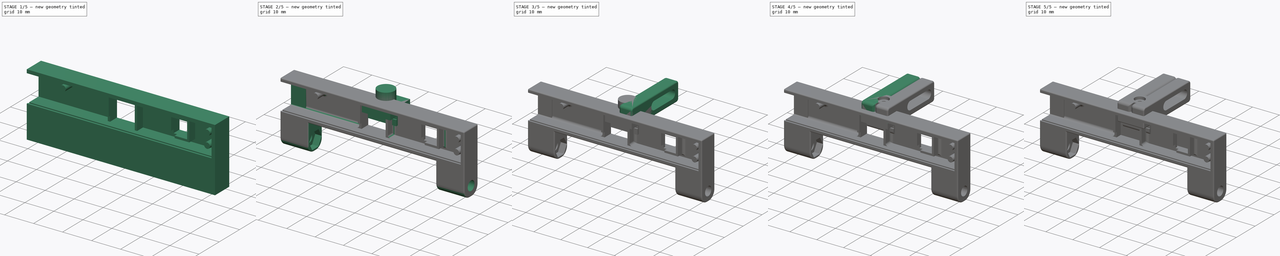
[diagram: build sequence overview — one tinted view per stage of 5, left to right]
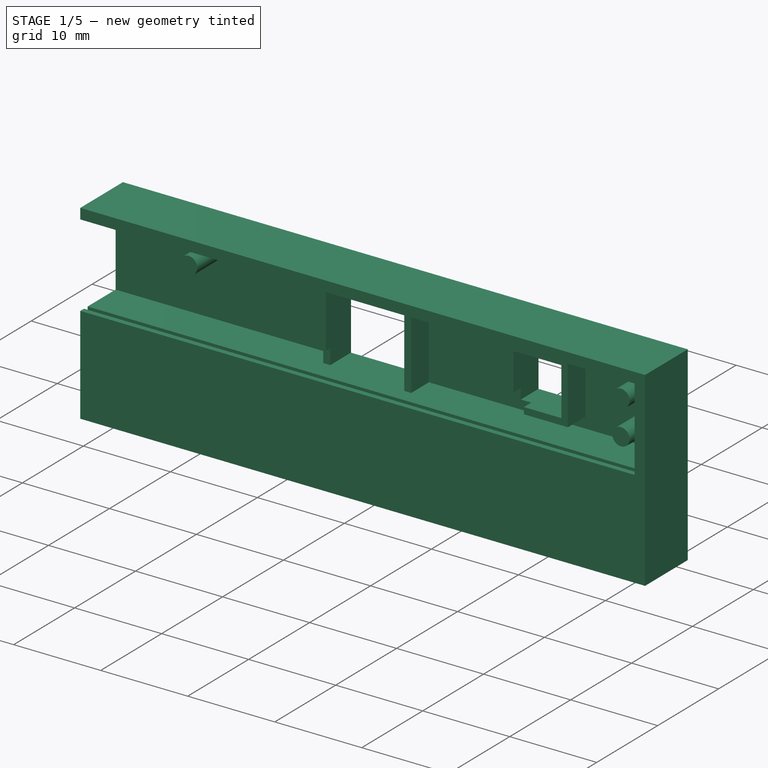
[diagram: stage 1 of 5 — iso view after this stage's code; geometry added in this stage tinted green]
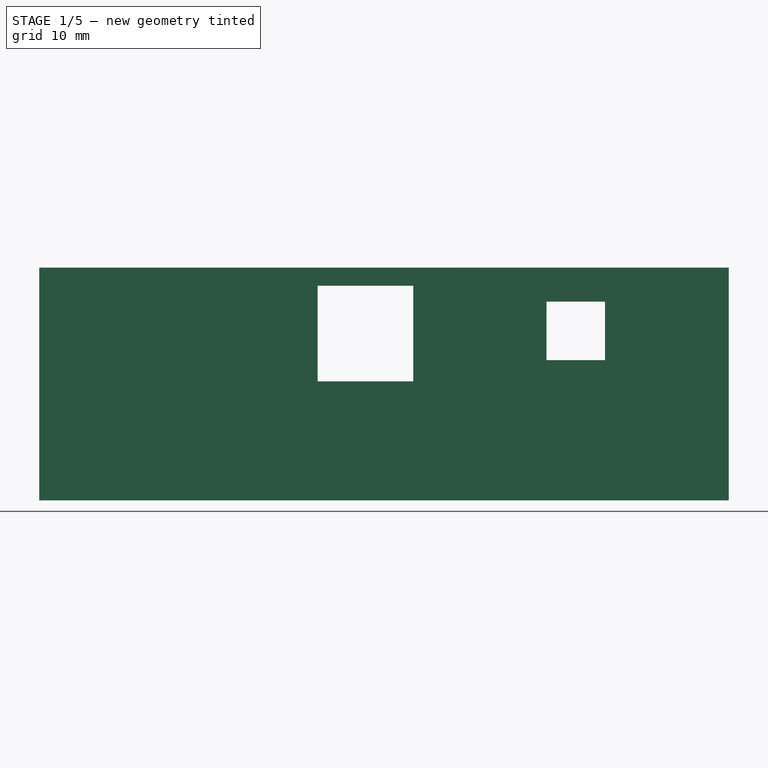
[diagram: stage 1 of 5 — front view after this stage's code; geometry added in this stage tinted green]
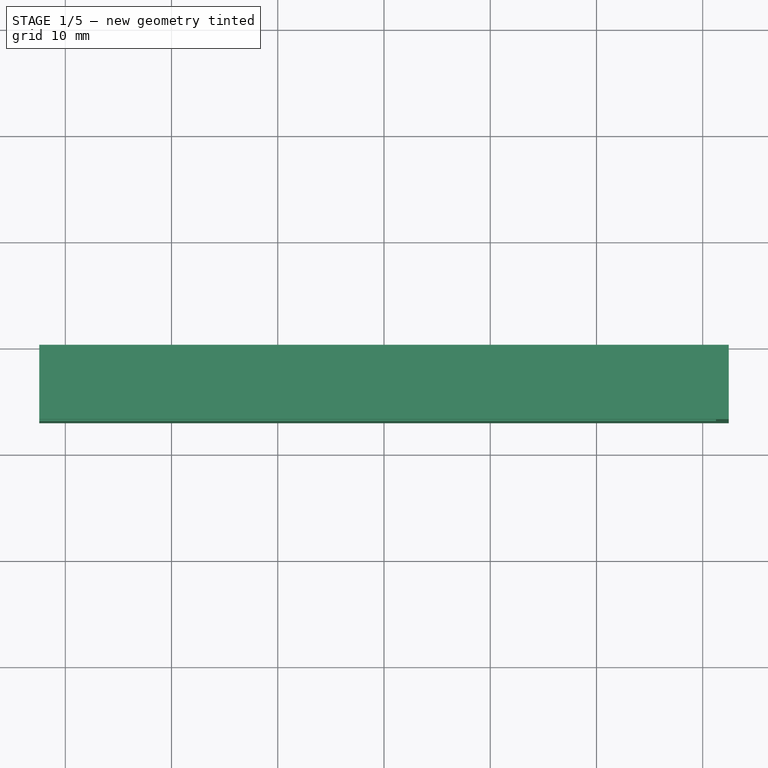
[diagram: stage 1 of 5 — top view after this stage's code; geometry added in this stage tinted green]
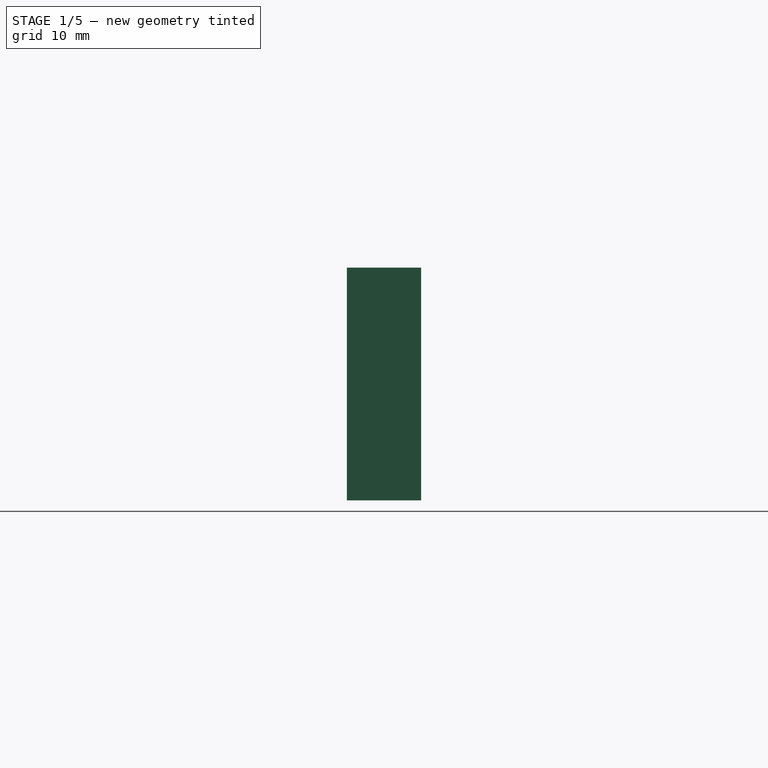
[diagram: stage 1 of 5 — right view after this stage's code; geometry added in this stage tinted green]
FCSTD DOCUMENT  (FreeCAD 0.19R)
Label: OV56485MPUSBCamera
License: All rights reserved
LicenseURL: http://en.wikipedia.org/wiki/All_rights_reserved
objects: Sketcher::SketchObject×36, PartDesign::Fillet×17, PartDesign::Pocket×16, PartDesign::Pad×15, PartDesign::Plane×7, PartDesign::Body×5, PartDesign::Hole×4, PartDesign::Chamfer×2, Part::Feature×1
note: 157 computed .brp shape members not serialized (recipe doc carries the construction recipe); baked Part::Feature solids carry a one-line shape summary decoded from their .brp

FEATURE [Sketcher::SketchObject] Sketch006
  FullyConstrained = true
  MapMode = 5
  Placement = pos=(0,0,0) rot=(1,0,0;1.5708rad)
  Support = -> [XZ_Plane]
  expr: Constraints[11] = 64.90000000000001 / 2
  sketch-geometry (4):
    g0: LineSegment StartX=-32.45 StartY=11.9 StartZ=0 EndX=32.45 EndY=11.9 EndZ=0
    g1: LineSegment StartX=32.45 StartY=11.9 StartZ=0 EndX=32.45 EndY=-10 EndZ=0
    g2: LineSegment StartX=32.45 StartY=-10 StartZ=0 EndX=-32.45 EndY=-10 EndZ=0
    g3: LineSegment StartX=-32.45 StartY=-10 StartZ=0 EndX=-32.45 EndY=11.9 EndZ=0
  constraints (13):
    c: Coincident(g0,g1)
    c: Coincident(g1,g2)
    c: Coincident(g2,g3)
    c: Coincident(g3,g0)
    c: Horizontal(g0)
    c: Horizontal(g2)
    c: Vertical(g1)
    c: Vertical(g3)
    c: DistanceX(g0,g0) = 64.9
    c: DistanceY(g3,g3) = 21.9
    c: PointOnObject(g2,g-1)
    c: DistanceX(g2,g-1) = 32.45
    c: DistanceY(g2,g-1) = 10
FEATURE [Sketcher::SketchObject] Sketch007
  AttachmentOffset = pos=(0,0,7) rot=(0,0,1;0rad)
  FullyConstrained = true
  MapMode = 5
  Placement = pos=(0,-7,-1.6e-15) rot=(1,0,0;1.5708rad)
  Support = -> [XZ_Plane]
  expr: Constraints[11] = -64.90000000000001 / 2 + 1.2
  sketch-geometry (4):
    g0: LineSegment StartX=-31.25 StartY=10.7 StartZ=0 EndX=31.25 EndY=10.7 EndZ=0
    g1: LineSegment StartX=31.25 StartY=10.7 StartZ=0 EndX=31.25 EndY=1.2 EndZ=0
    g2: LineSegment StartX=31.25 StartY=1.2 StartZ=0 EndX=-31.25 EndY=1.2 EndZ=0
    g3: LineSegment StartX=-31.25 StartY=1.2 StartZ=0 EndX=-31.25 EndY=10.7 EndZ=0
  constraints (12):
    c: Coincident(g0,g1)
    c: Coincident(g1,g2)
    c: Coincident(g2,g3)
    c: Coincident(g3,g0)
    c: Horizontal(g0)
    c: Horizontal(g2)
    c: Vertical(g1)
    c: Vertical(g3)
    c: DistanceX(g0,g0) = 62.5
    c: DistanceY(g3,g3) = 9.5
    c: DistanceY(g-1,g2) = 1.2
    c: DistanceX(g-1,g2) = -31.25
FEATURE [Sketcher::SketchObject] Sketch008
  FullyConstrained = true
  MapMode = 5
  Placement = pos=(0,0,0) rot=(1,0,0;1.5708rad)
  Support = -> [XZ_Plane]
  expr: Constraints[11] = -(64.90000000000001 / 2) + 26.2
  sketch-geometry (4):
    g0: LineSegment StartX=-6.25 StartY=10.2 StartZ=0 EndX=2.75 EndY=10.2 EndZ=0
    g1: LineSegment StartX=2.75 StartY=10.2 StartZ=0 EndX=2.75 EndY=1.2 EndZ=0
    g2: LineSegment StartX=2.75 StartY=1.2 StartZ=0 EndX=-6.25 EndY=1.2 EndZ=0
    g3: LineSegment StartX=-6.25 StartY=1.2 StartZ=0 EndX=-6.25 EndY=10.2 EndZ=0
  constraints (12):
    c: Coincident(g0,g1)
    c: Coincident(g1,g2)
    c: Coincident(g2,g3)
    c: Coincident(g3,g0)
    c: Horizontal(g0)
    c: Horizontal(g2)
    c: Vertical(g1)
    c: Vertical(g3)
    c: Equal(g3,g0)
    c: DistanceY(g3,g3) = 9
    c: DistanceY(g-1,g2) = 1.2
    c: DistanceX(g-1,g2) = -6.25
FEATURE [Sketcher::SketchObject] Sketch009
  AttachmentOffset = pos=(0,0,1.2) rot=(0,0,1;0rad)
  FullyConstrained = true
  MapMode = 5
  Placement = pos=(0,-1.2,-3e-16) rot=(1,0,0;1.5708rad)
  Support = -> [XZ_Plane]
  expr: Constraints[22] = -(64.90000000000001 / 2) + 26.2
  sketch-geometry (8):
    g0: LineSegment StartX=-7.05 StartY=10.7 StartZ=0 EndX=-6.25 EndY=10.7 EndZ=0
    g1: LineSegment StartX=-6.25 StartY=10.7 StartZ=0 EndX=-6.25 EndY=1.2 EndZ=0
    g2: LineSegment StartX=-6.25 StartY=1.2 StartZ=0 EndX=-7.05 EndY=1.2 EndZ=0
    g3: LineSegment StartX=-7.05 StartY=1.2 StartZ=0 EndX=-7.05 EndY=10.7 EndZ=0
    g4: LineSegment StartX=3.55 StartY=10.7 StartZ=0 EndX=2.75 EndY=10.7 EndZ=0
    g5: LineSegment StartX=2.75 StartY=10.7 StartZ=0 EndX=2.75 EndY=1.2 EndZ=0
    g6: LineSegment StartX=2.75 StartY=1.2 StartZ=0 EndX=3.55 EndY=1.2 EndZ=0
    g7: LineSegment StartX=3.55 StartY=1.2 StartZ=0 EndX=3.55 EndY=10.7 EndZ=0
  constraints (24):
    c: Coincident(g0,g1)
    c: Coincident(g1,g2)
    c: Coincident(g2,g3)
    c: Coincident(g3,g0)
    c: Horizontal(g0)
    c: Horizontal(g2)
    c: Vertical(g1)
    c: Vertical(g3)
    c: Coincident(g4,g5)
    c: Coincident(g5,g6)
    c: Coincident(g6,g7)
    c: Coincident(g7,g4)
    c: Horizontal(g4)
    c: Horizontal(g6)
    c: Vertical(g5)
    c: Vertical(g7)
    c: Horizontal(g0,g4)
    c: Equal(g0,g4)
    c: Equal(g3,g7)
    c: DistanceX(g0,g0) = 0.8
    c: DistanceY(g3,g3) = 9.5
    c: DistanceY(g-1,g1) = 1.2
    c: DistanceX(g-1,g1) = -6.25
    c: DistanceX(g0,g4) = 9
FEATURE [Sketcher::SketchObject] Sketch010
  AttachmentOffset = pos=(0,0,1.2) rot=(0,0,1;0rad)
  FullyConstrained = true
  MapMode = 5
  Placement = pos=(0,-1.2,-3e-16) rot=(1,0,0;1.5708rad)
  Support = -> [XZ_Plane]
  expr: Constraints[10] = -(64.90000000000001 / 2) + 45
  sketch-geometry (4):
    g0: LineSegment StartX=12.55 StartY=9.45 StartZ=0 EndX=21.55 EndY=9.45 EndZ=0
    g1: LineSegment StartX=21.55 StartY=9.45 StartZ=0 EndX=21.55 EndY=2.45 EndZ=0
    g2: LineSegment StartX=21.55 StartY=2.45 StartZ=0 EndX=12.55 EndY=2.45 EndZ=0
    g3: LineSegment StartX=12.55 StartY=2.45 StartZ=0 EndX=12.55 EndY=9.45 EndZ=0
  constraints (12):
    c: Coincident(g0,g1)
    c: Coincident(g1,g2)
    c: Coincident(g2,g3)
    c: Coincident(g3,g0)
    c: Horizontal(g0)
    c: Horizontal(g2)
    c: Vertical(g1)
    c: Vertical(g3)
    c: DistanceY(g3,g3) = 7
    c: DistanceY(g-1,g2) = 2.45
    c: DistanceX(g-1,g2) = 12.55
    c: DistanceX(g2,g2) = 9
FEATURE [Sketcher::SketchObject] Sketch011
  FullyConstrained = true
  MapMode = 5
  Placement = pos=(0,0,0) rot=(1,0,0;1.5708rad)
  Support = -> [XZ_Plane]
  expr: Constraints[11] = -(64.90000000000001 / 2) + 47.75
  sketch-geometry (4):
    g0: LineSegment StartX=15.3 StartY=8.7 StartZ=0 EndX=20.8 EndY=8.7 EndZ=0
    g1: LineSegment StartX=20.8 StartY=8.7 StartZ=0 EndX=20.8 EndY=3.2 EndZ=0
    g2: LineSegment StartX=20.8 StartY=3.2 StartZ=0 EndX=15.3 EndY=3.2 EndZ=0
    g3: LineSegment StartX=15.3 StartY=3.2 StartZ=0 EndX=15.3 EndY=8.7 EndZ=0
  constraints (12):
    c: Coincident(g0,g1)
    c: Coincident(g1,g2)
    c: Coincident(g2,g3)
    c: Coincident(g3,g0)
    c: Horizontal(g0)
    c: Horizontal(g2)
    c: Vertical(g1)
    c: Vertical(g3)
    c: Equal(g3,g0)
    c: DistanceY(g3,g3) = 5.5
    c: DistanceY(g-1,g2) = 3.2
    c: DistanceX(g-1,g2) = 15.3
FEATURE [Sketcher::SketchObject] Sketch012
  AttachmentOffset = pos=(0,0,4.6) rot=(0,0,1;0rad)
  FullyConstrained = true
  MapMode = 5
  Placement = pos=(0,-4.6,-1e-15) rot=(1,0,0;1.5708rad)
  Support = -> [XZ_Plane]
  expr: Constraints[11] = -(64.90000000000001 / 2) + 26.2
  sketch-geometry (4):
    g0: LineSegment StartX=-7.05 StartY=3 StartZ=0 EndX=-6.25 EndY=3 EndZ=0
    g1: LineSegment StartX=-6.25 StartY=3 StartZ=0 EndX=-6.25 EndY=1.2 EndZ=0
    g2: LineSegment StartX=-6.25 StartY=1.2 StartZ=0 EndX=-7.05 EndY=1.2 EndZ=0
    g3: LineSegment StartX=-7.05 StartY=1.2 StartZ=0 EndX=-7.05 EndY=3 EndZ=0
  constraints (12):
    c: Coincident(g0,g1)
    c: Coincident(g1,g2)
    c: Coincident(g2,g3)
    c: Coincident(g3,g0)
    c: Horizontal(g0)
    c: Horizontal(g2)
    c: Vertical(g1)
    c: Vertical(g3)
    c: DistanceY(g3,g3) = 1.8
    c: DistanceX(g0,g0) = 0.8
    c: DistanceY(g-1,g2) = 1.2
    c: DistanceX(g-1,g1) = -6.25
FEATURE [Sketcher::SketchObject] Sketch013
  AttachmentOffset = pos=(0,0,1.2) rot=(0,0,1;0rad)
  FullyConstrained = true
  MapMode = 5
  Placement = pos=(0,-1.2,-3e-16) rot=(1,0,0;1.5708rad)
  Support = -> [XZ_Plane]
  expr: Constraints[4] = -(64.90000000000001 / 2) + 61.15
  expr: Constraints[8] = -(64.90000000000001 / 2) + 11.45
  sketch-geometry (3):
    g0: Circle CenterX=28.7 CenterY=7.95 CenterZ=0 NormalX=0 NormalY=0 NormalZ=1 AngleXU=0 Radius=1
    g1: Circle CenterX=28.7 CenterY=3.95 CenterZ=0 NormalX=0 NormalY=0 NormalZ=1 AngleXU=0 Radius=1
    g2: Circle CenterX=-21 CenterY=8.45 CenterZ=0 NormalX=0 NormalY=0 NormalZ=1 AngleXU=0 Radius=1
  constraints (9):
    c: Equal(g1,g0)
    c: Vertical(g0,g1)
    c: DistanceY(g1,g0) = 4
    c: Radius(g0) = 1
    c: DistanceX(g-1,g1) = 28.7
    c: DistanceY(g-1,g1) = 3.95
    c: Radius(g2) = 1
    c: DistanceY(g-1,g2) = 8.45
    c: DistanceX(g-1,g2) = -21
FEATURE [Sketcher::SketchObject] Sketch014
  AttachmentOffset = pos=(0,0,1.2) rot=(0,0,1;0rad)
  FullyConstrained = true
  MapMode = 5
  Placement = pos=(0,-1.2,-3e-16) rot=(1,0,0;1.5708rad)
  Support = -> [XZ_Plane]
  expr: Constraints[10] = 64.90000000000001 / 2
  sketch-geometry (4):
    g0: LineSegment StartX=-32.45 StartY=10.7 StartZ=0 EndX=-27.25 EndY=10.7 EndZ=0
    g1: LineSegment StartX=-27.25 StartY=10.7 StartZ=0 EndX=-27.25 EndY=1.2 EndZ=0
    g2: LineSegment StartX=-27.25 StartY=1.2 StartZ=0 EndX=-32.45 EndY=1.2 EndZ=0
    g3: LineSegment StartX=-32.45 StartY=1.2 StartZ=0 EndX=-32.45 EndY=10.7 EndZ=0
  constraints (12):
    c: Coincident(g0,g1)
    c: Coincident(g1,g2)
    c: Coincident(g2,g3)
    c: Coincident(g3,g0)
    c: Horizontal(g0)
    c: Horizontal(g2)
    c: Vertical(g1)
    c: Vertical(g3)
    c: DistanceY(g1,g1) = 9.5
    c: DistanceY(g-1,g2) = 1.2
    c: DistanceX(g2,g-1) = 32.45
    c: DistanceX(g0,g0) = 5.2
FEATURE [Sketcher::SketchObject] Sketch015
  AttachmentOffset = pos=(0,0,4.1) rot=(0,0,1;0rad)
  FullyConstrained = false
  MapMode = 5
  Placement = pos=(0,-4.1,-9e-16) rot=(1,0,0;1.5708rad)
  Support = -> [XZ_Plane]
  expr: Constraints[13] = -(64.90000000000001 / 2) + 46.95
  sketch-geometry (9):
    g0: LineSegment StartX=14.5 StartY=2.4 StartZ=0 EndX=16.5 EndY=2.4 EndZ=0
    g1: LineSegment StartX=16.5 StartY=2.4 StartZ=0 EndX=16.5 EndY=3.2 EndZ=0
    g2: LineSegment StartX=16.5 StartY=3.2 StartZ=0 EndX=15.466 EndY=3.2 EndZ=0
    g3: LineSegment StartX=15.466 StartY=3.2 StartZ=0 EndX=15.466 EndY=4.4 EndZ=0
    g4: LineSegment StartX=15.466 StartY=4.4 StartZ=0 EndX=14.666 EndY=4.4 EndZ=0
    g5: LineSegment StartX=14.5 StartY=2.4 StartZ=0 EndX=12.5 EndY=2.4 EndZ=0
    g6: LineSegment StartX=12.5 StartY=2.4 StartZ=0 EndX=12.5 EndY=9.6 EndZ=0
    g7: LineSegment StartX=12.5 StartY=9.6 StartZ=0 EndX=14.666 EndY=9.6 EndZ=0
    g8: LineSegment StartX=14.666 StartY=9.6 StartZ=0 EndX=14.666 EndY=4.4 EndZ=0
  constraints (25):
    c: Horizontal(g0)
    c: Coincident(g0,g1)
    c: Vertical(g1)
    c: Coincident(g1,g2)
    c: Horizontal(g2)
    c: Coincident(g2,g3)
    c: Vertical(g3)
    c: Coincident(g3,g4)
    c: Horizontal(g4)
    c: Equal(g1,g4)
    c: DistanceY(g1,g1) = 0.8
    c: DistanceX(g0,g0) = 2
    c: DistanceY(g-1,g0) = 2.4
    c: DistanceX(g-1,g0) = 14.5
    c: Coincident(g0,g5)
    c: Horizontal(g5)
    c: Coincident(g5,g6)
    c: Vertical(g6)
    c: Coincident(g6,g7)
    c: Horizontal(g7)
    c: Coincident(g7,g8)
    c: Coincident(g8,g4)
    c: Vertical(g8)
    c: DistanceX(g5,g5) = 2
    c: DistanceY(g6,g6) = 7.2
FEATURE [Sketcher::SketchObject] Sketch016
  AttachmentOffset = pos=(0,0,32.45) rot=(0,0,1;-1.5708rad)
  FullyConstrained = true
  MapMode = 5
  Placement = pos=(-32.45,7.2e-15,-7.2e-15) rot=(0.707107,0,-0.707107;3.14159rad)
  Support = -> [YZ_Plane]
  expr: .AttachmentOffset.Base.z = 64.90000000000001 / 2
  sketch-geometry (8):
    g0: LineSegment StartX=-11.1 StartY=6 StartZ=0 EndX=-11.1 EndY=5.8 EndZ=0
    g1: LineSegment StartX=-11.1 StartY=5.8 StartZ=0 EndX=-10.7 EndY=5.8 EndZ=0
    g2: LineSegment StartX=-10.7 StartY=5.8 StartZ=0 EndX=-10.7 EndY=6.4 EndZ=0
    g3: LineSegment StartX=-10.7 StartY=6.4 StartZ=0 EndX=-11.1 EndY=6 EndZ=0
    g4: LineSegment StartX=-1.2 StartY=5.8 StartZ=0 EndX=-0.8 EndY=5.8 EndZ=0
    g5: LineSegment StartX=-0.8 StartY=5.8 StartZ=0 EndX=-0.8 EndY=6 EndZ=0
    g6: LineSegment StartX=-0.8 StartY=6 StartZ=0 EndX=-1.2 EndY=6.4 EndZ=0
    g7: LineSegment StartX=-1.2 StartY=6.4 StartZ=0 EndX=-1.2 EndY=5.8 EndZ=0
  constraints (24):
    c: Vertical(g0)
    c: Coincident(g0,g1)
    c: Horizontal(g1)
    c: Coincident(g1,g2)
    c: Vertical(g2)
    c: Coincident(g2,g3)
    c: Coincident(g3,g0)
    c: DistanceX(g1,g1) = 0.4
    c: Angle(g0,g3) = 2.35619
    c: DistanceY(g-1,g1) = 5.8
    c: DistanceX(g1,g-1) = 10.7
    c: DistanceY(g0,g0) = 0.2
    c: Horizontal(g4)
    c: Coincident(g4,g5)
    c: Vertical(g5)
    c: Coincident(g5,g6)
    c: Coincident(g6,g7)
    c: Coincident(g7,g4)
    c: Vertical(g7)
    c: Equal(g0,g5)
    c: Equal(g1,g4)
    c: Equal(g7,g2)
    c: DistanceX(g4,g-1) = 0.8
    c: DistanceY(g-1,g4) = 5.8
FEATURE [PartDesign::Pad] Pad002  label="bowl_shell"
  Direction = (1,1,1)
  Length = 7
  Length2 = 100
  Placement = pos=(0,0,0) rot=(1,0,0;1.5708rad)
  Profile = -> Sketch006
  Refine = true
  Type = 0
FEATURE [PartDesign::Pocket] Pocket002  label="bowl_pocket"
  BaseFeature = -> Pad002
  Length = 5.8
  Length2 = 100
  Placement = pos=(0,0,0) rot=(1,0,0;1.5708rad)
  Profile = -> Sketch007
  Refine = true
  Type = 0
FEATURE [PartDesign::Pocket] Pocket003  label="lens_hole"
  BaseFeature = -> Pocket002
  Length = 5
  Length2 = 100
  Placement = pos=(0,0,0) rot=(1,0,0;1.5708rad)
  Profile = -> Sketch008
  Refine = true
  Reversed = true
  Type = 1
FEATURE [PartDesign::Pad] Pad009  label="lens_rest"
  BaseFeature = -> Pocket003
  Direction = (1,1,1)
  Length = 2.9
  Length2 = 100
  Placement = pos=(0,0,0) rot=(1,0,0;1.5708rad)
  Profile = -> Sketch009
  Refine = true
  Type = 0
FEATURE [PartDesign::Pocket] Pocket004  label="lens_rest_cut"
  BaseFeature = -> Pad009
  Length = 1.2
  Length2 = 100
  Placement = pos=(0,0,0) rot=(1,0,0;1.5708rad)
  Profile = -> Sketch012
  Refine = true
  Type = 0
FEATURE [PartDesign::Pad] Pad010  label="flash_rest_shell"
  BaseFeature = -> Pocket004
  Direction = (1,1,1)
  Length = 2.9
  Length2 = 100
  Placement = pos=(0,0,0) rot=(1,0,0;1.5708rad)
  Profile = -> Sketch010
  Refine = true
  Type = 0
FEATURE [PartDesign::Pocket] Pocket005  label="flash_rest_pocket"
  BaseFeature = -> Pad010
  Length = 5
  Length2 = 100
  Placement = pos=(0,0,0) rot=(1,0,0;1.5708rad)
  Profile = -> Sketch011
  Refine = true
  Reversed = true
  Type = 1
FEATURE [PartDesign::Pocket] Pocket006  label="flash_rest_cut"
  BaseFeature = -> Pocket005
  Length = 1.2
  Length2 = 100
  Placement = pos=(0,0,0) rot=(1,0,0;1.5708rad)
  Profile = -> Sketch015
  Refine = true
  Type = 0
FEATURE [PartDesign::Pad] Pad011  label="pcb_pins"
  BaseFeature = -> Pocket006
  Direction = (1,1,1)
  Length = 4.4
  Length2 = 100
  Placement = pos=(0,0,0) rot=(1,0,0;1.5708rad)
  Profile = -> Sketch013
  Refine = true
  Type = 0
FEATURE [Sketcher::SketchObject] Sketch017
  AttachmentOffset = pos=(0,0,-32.45) rot=(0,0,1;0rad)
  FullyConstrained = true
  MapMode = 5
  Placement = pos=(-32.45,7.2e-15,-7.2e-15) rot=(0.57735,0.57735,0.57735;2.0944rad)
  Support = -> [YZ_Plane]
  expr: .AttachmentOffset.Base.z = -64.90000000000001 / 2
  sketch-geometry (4):
    g0: LineSegment StartX=-7.4 StartY=10.7 StartZ=0 EndX=-1.2 EndY=10.7 EndZ=0
    g1: LineSegment StartX=-1.2 StartY=10.7 StartZ=0 EndX=-1.2 EndY=1.2 EndZ=0
    g2: LineSegment StartX=-1.2 StartY=1.2 StartZ=0 EndX=-7.4 EndY=1.2 EndZ=0
    g3: LineSegment StartX=-7.4 StartY=1.2 StartZ=0 EndX=-7.4 EndY=10.7 EndZ=0
  constraints (12):
    c: Coincident(g0,g1)
    c: Coincident(g1,g2)
    c: Coincident(g2,g3)
    c: Coincident(g3,g0)
    c: Horizontal(g0)
    c: Horizontal(g2)
    c: Vertical(g1)
    c: Vertical(g3)
    c: DistanceY(g-1,g2) = 1.2
    c: DistanceX(g0,g0) = 6.2
    c: DistanceY(g1,g1) = 9.5
    c: DistanceX(g-1,g1) = -1.2
FEATURE [PartDesign::Pocket] Pocket007  label="usb_hole"
  BaseFeature = -> Pad011
  Length = 1.2
  Length2 = 100
  Placement = pos=(0,0,0) rot=(1,0,0;1.5708rad)
  Profile = -> Sketch017
  Refine = true
  Reversed = true
  Type = 0
FEATURE [PartDesign::Pocket] Pocket008  label="lid_groove"
  BaseFeature = -> Pocket007
  Length = 63.7
  Length2 = 100
  Placement = pos=(0,0,0) rot=(1,0,0;1.5708rad)
  Profile = -> Sketch016
  Refine = true
  Type = 0
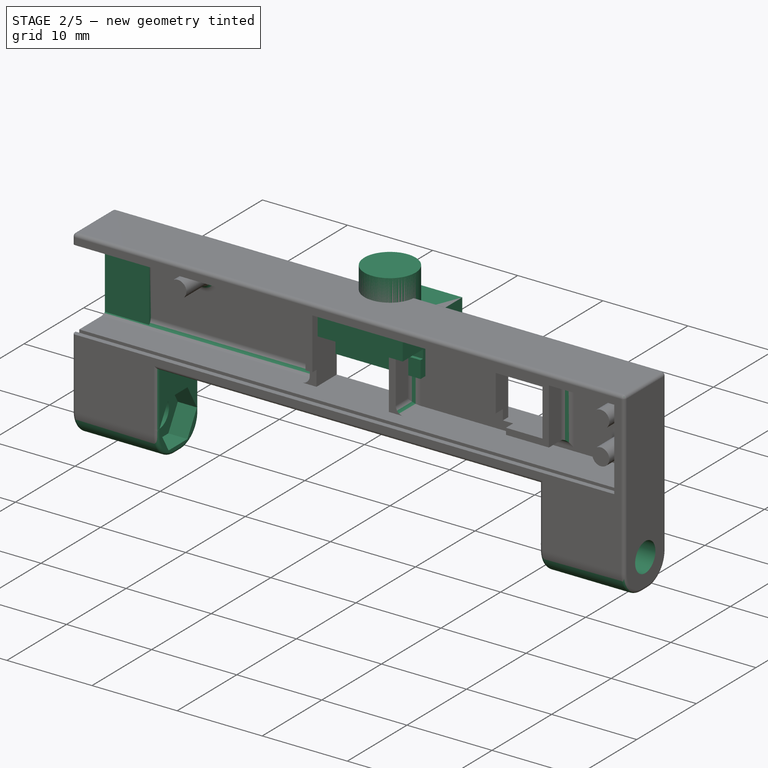
[diagram: stage 2 of 5 — iso view after this stage's code; geometry added in this stage tinted green]
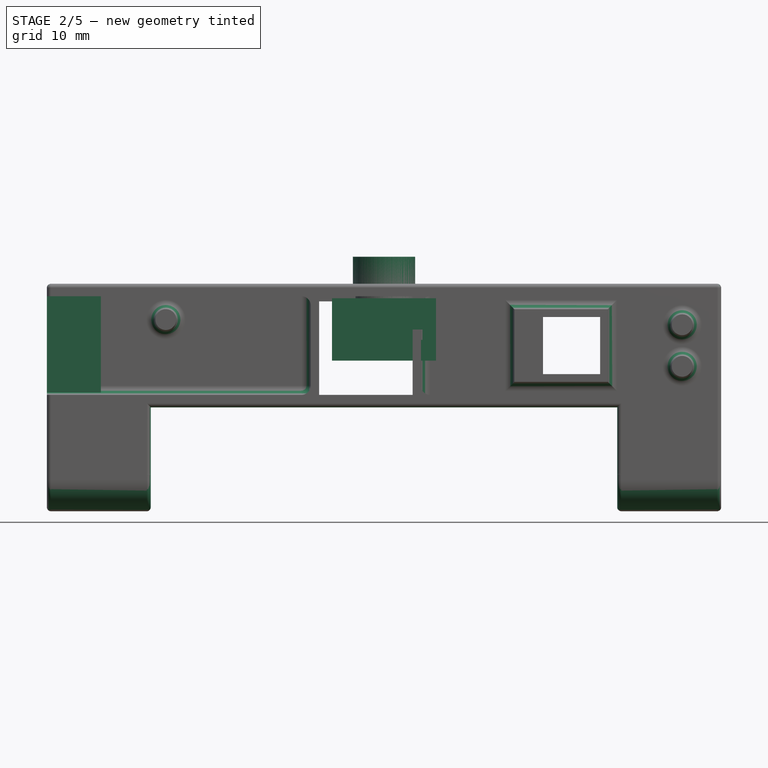
[diagram: stage 2 of 5 — front view after this stage's code; geometry added in this stage tinted green]
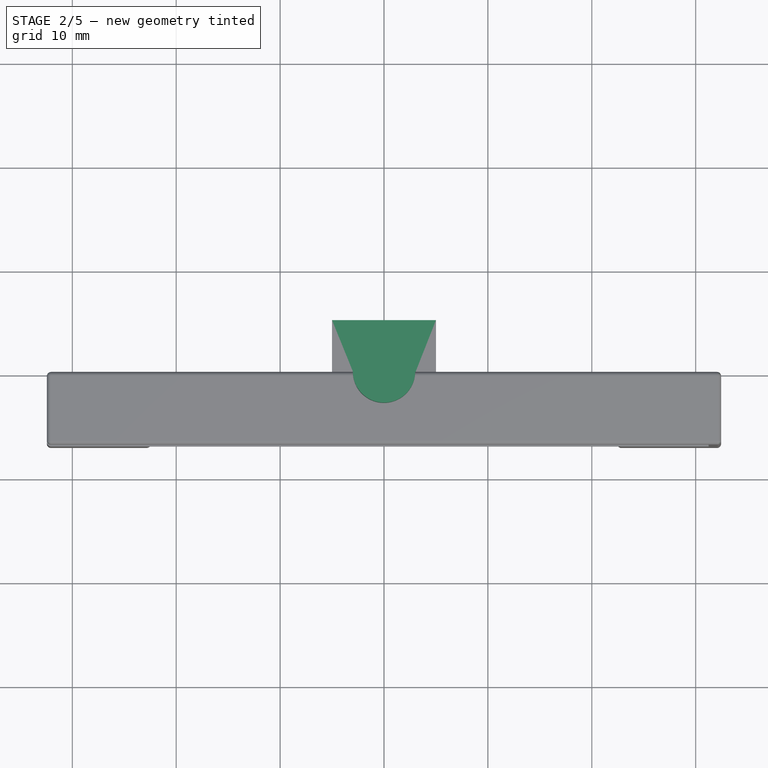
[diagram: stage 2 of 5 — top view after this stage's code; geometry added in this stage tinted green]
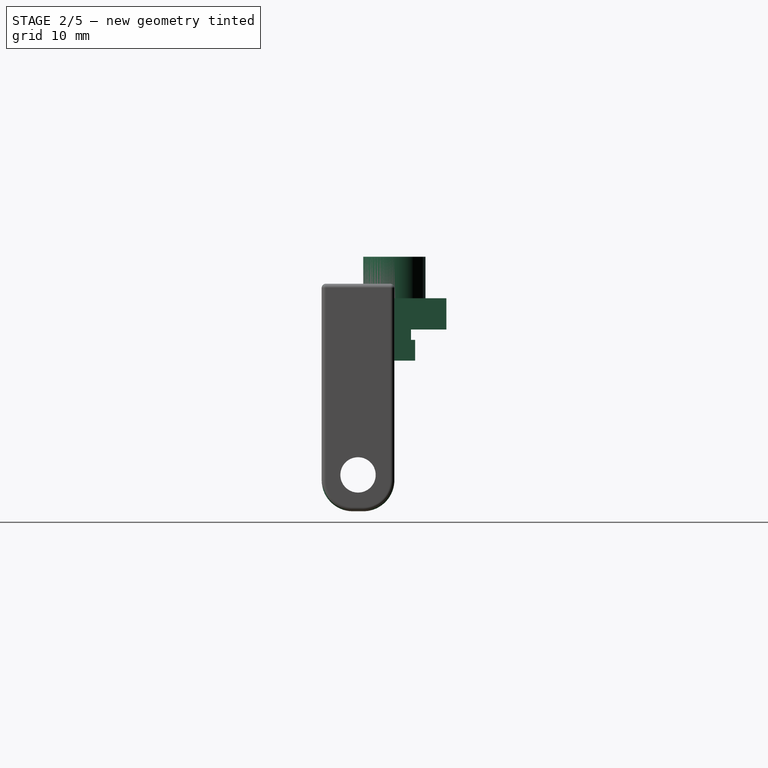
[diagram: stage 2 of 5 — right view after this stage's code; geometry added in this stage tinted green]
FEATURE [PartDesign::Body] Body001  label="mount_left_old"
  Group = -> [Sketch,Pad,Sketch002,Pocket,Fillet,Sketch024,Pad016,Fillet004,DatumPlane,Sketch025,Pad017,DatumPlane001,Sketch026,Hole004,Fillet005,Fillet006,DatumPlane002,Sketch027,Pocket010,Sketch028,Fillet009]
  Origin = -> Origin001
  Placement = pos=(-37.45,0,0) rot=(0,0,1;0rad)
  Tip = -> Fillet009
  expr: .Placement.Base.x = -(64.90000000000001 / 2) - 5
FEATURE [Sketcher::SketchObject] Sketch030
  FullyConstrained = true
  MapMode = 5
  Placement = pos=(22.45,0,0) rot=(0.707107,0,-0.707107;3.14159rad)
  sketch-geometry (7):
    g0: LineSegment StartX=6.5 StartY=0.324574 StartZ=0 EndX=9.25 EndY=1.91229 EndZ=0
    g1: LineSegment StartX=9.25 StartY=1.91229 StartZ=0 EndX=9.25 EndY=5.08771 EndZ=0
    g2: LineSegment StartX=9.25 StartY=5.08771 StartZ=0 EndX=6.5 EndY=6.67543 EndZ=0
    g3: LineSegment StartX=6.5 StartY=6.67543 StartZ=0 EndX=3.75 EndY=5.08771 EndZ=0
    g4: LineSegment StartX=3.75 StartY=5.08771 StartZ=0 EndX=3.75 EndY=1.91229 EndZ=0
    g5: LineSegment StartX=3.75 StartY=1.91229 StartZ=0 EndX=6.5 EndY=0.324574 EndZ=0
    g6: Circle CenterX=6.5 CenterY=3.5 CenterZ=0 NormalX=0 NormalY=0 NormalZ=1 AngleXU=0 Radius=3.17543
  constraints (17):
    c: Coincident(g0,g1)
    c: Coincident(g1,g2)
    c: Coincident(g2,g3)
    c: Coincident(g3,g4)
    c: Coincident(g4,g5)
    c: Coincident(g5,g0)
    c: Equal(g0, g1-g5) x5
    c: PointOnObject(g0,g6)
    c: PointOnObject(g1,g6)
    c: PointOnObject(g2,g6)
    c: PointOnObject(g3,g6)
    c: PointOnObject(g4,g6)
    c: PointOnObject(g5,g6)
    c: DistanceX(g-1,g6) = 6.5
    c: DistanceY(g-1,g6) = 3.5
    c: Vertical(g2,g6)
    c: DistanceX(g3,g1) = 5.5
FEATURE [Sketcher::SketchObject] Sketch031
  FullyConstrained = true
  MapMode = 5
  Placement = pos=(-22.45,0,0) rot=(0.707107,0,0.707107;3.14159rad)
  sketch-geometry (7):
    g0: LineSegment StartX=-3.75 StartY=1.91229 StartZ=0 EndX=-3.75 EndY=5.08771 EndZ=0
    g1: LineSegment StartX=-3.75 StartY=5.08771 StartZ=0 EndX=-6.5 EndY=6.67543 EndZ=0
    g2: LineSegment StartX=-6.5 StartY=6.67543 StartZ=0 EndX=-9.25 EndY=5.08771 EndZ=0
    g3: LineSegment StartX=-9.25 StartY=5.08771 StartZ=0 EndX=-9.25 EndY=1.91229 EndZ=0
    g4: LineSegment StartX=-9.25 StartY=1.91229 StartZ=0 EndX=-6.5 EndY=0.324574 EndZ=0
    g5: LineSegment StartX=-6.5 StartY=0.324574 StartZ=0 EndX=-3.75 EndY=1.91229 EndZ=0
    g6: Circle CenterX=-6.5 CenterY=3.5 CenterZ=0 NormalX=0 NormalY=0 NormalZ=1 AngleXU=0 Radius=3.17543
  constraints (17):
    c: Coincident(g0,g1)
    c: Coincident(g1,g2)
    c: Coincident(g2,g3)
    c: Coincident(g3,g4)
    c: Coincident(g4,g5)
    c: Coincident(g5,g0)
    c: Equal(g0, g1-g5) x5
    c: PointOnObject(g0,g6)
    c: PointOnObject(g1,g6)
    c: PointOnObject(g2,g6)
    c: PointOnObject(g3,g6)
    c: PointOnObject(g4,g6)
    c: PointOnObject(g5,g6)
    c: DistanceX(g3,g0) = 5.5
    c: DistanceX(g6,g-1) = 6.5
    c: DistanceY(g-1,g6) = 3.5
    c: Vertical(g6,g1)
FEATURE [PartDesign::Fillet] Fillet010  label="hinge_rounding"
  Base = -> Pocket008 [Edge23,Edge35]
  BaseFeature = -> Pocket008
  Placement = pos=(0,0,0) rot=(1,0,0;1.5708rad)
  Radius = 3
  Refine = true
  SupportTransform = false
FEATURE [PartDesign::Pocket] Pocket011  label="hinge_cut"
  BaseFeature = -> Fillet010
  Length = 5
  Length2 = 100
  Placement = pos=(0,0,0) rot=(1,0,0;1.5708rad)
  Profile = -> Sketch019
  Refine = true
  Reversed = true
  Type = 1
FEATURE [PartDesign::Pocket] Pocket012  label="hinge_nut_left"
  BaseFeature = -> Pocket011
  Length = 2.25
  Length2 = 100
  Placement = pos=(0,0,0) rot=(1,0,0;1.5708rad)
  Profile = -> Sketch030
  Refine = true
  Type = 0
FEATURE [PartDesign::Pocket] Pocket013  label="hinge_nut_right"
  BaseFeature = -> Pocket012
  Length = 2.25
  Length2 = 100
  Placement = pos=(0,0,0) rot=(1,0,0;1.5708rad)
  Profile = -> Sketch031
  Refine = true
  Type = 0
FEATURE [Sketcher::SketchObject] Sketch032
  FullyConstrained = true
  MapMode = 5
  Placement = pos=(-32.45,0,0) rot=(0.707107,0,-0.707107;3.14159rad)
  Support = -> [Pocket013]
  sketch-geometry (1):
    g0: Circle CenterX=6.5 CenterY=3.5 CenterZ=0 NormalX=0 NormalY=0 NormalZ=1 AngleXU=0 Radius=1
  constraints (3):
    c: Radius(g0) = 1
    c: DistanceX(g-1,g0) = 6.5
    c: DistanceY(g-1,g0) = 3.5
FEATURE [PartDesign::Hole] Hole  label="hinge_holes"
  BaseFeature = -> Pocket013
  Depth = 25
  DepthType = 1
  Diameter = 3.4
  DrillForDepth = false
  DrillPoint = 1
  DrillPointAngle = 118
  HoleCutCountersinkAngle = 90
  HoleCutCustomValues = false
  HoleCutDepth = 0
  HoleCutDiameter = 6.1
  HoleCutType = 0
  ModelActualThread = false
  Placement = pos=(0,0,0) rot=(1,0,0;1.5708rad)
  Profile = -> Sketch032
  Refine = true
  Tapered = false
  TaperedAngle = 90
  ThreadAngle = 0
  ThreadClass = 0
  ThreadCutOffInner = 0
  ThreadCutOffOuter = 0
  ThreadDirection = 0
  ThreadFit = 0
  ThreadPitch = 0
  ThreadSize = 9
  ThreadType = 1
  Threaded = false
FEATURE [PartDesign::Fillet] Fillet011  label="reinforcements"
  Base = -> Hole [Edge77,Edge78,Edge73,Edge80,Edge135,Edge67,Edge85,Edge137,Edge139,Edge136,Edge138,Edge79,Edge141,Edge140]
  BaseFeature = -> Hole
  Placement = pos=(0,0,0) rot=(1,0,0;1.5708rad)
  Radius = 0.9
  Refine = true
  SupportTransform = false
FEATURE [PartDesign::Chamfer] Chamfer  label="flash_channel"
  Angle = 45
  Base = -> Fillet011 [Edge89]
  BaseFeature = -> Fillet011
  ChamferType = 0
  FlipDirection = false
  Placement = pos=(0,0,0) rot=(1,0,0;1.5708rad)
  Refine = true
  Size = 2
  Size2 = 1
  SupportTransform = false
FEATURE [PartDesign::Pad] Pad018  label="usb_rest"
  BaseFeature = -> Chamfer
  Direction = (1,1,1)
  Length = 0.3
  Length2 = 100
  Placement = pos=(0,0,0) rot=(1,0,0;1.5708rad)
  Profile = -> Sketch014
  Refine = true
  Type = 0
FEATURE [Sketcher::SketchObject] Sketch033
  FullyConstrained = true
  MapMode = 5
  Placement = pos=(0,0,0) rot=(0.57735,0.57735,0.57735;2.0944rad)
  Support = -> [YZ_Plane004]
  sketch-geometry (12):
    g0: LineSegment StartX=-5 StartY=7.5 StartZ=0 EndX=-5 EndY=10.5 EndZ=0
    g1: LineSegment StartX=-5 StartY=10.5 StartZ=0 EndX=5 EndY=10.5 EndZ=0
    g2: LineSegment StartX=5 StartY=10.5 StartZ=0 EndX=5 EndY=7.5 EndZ=0
    g3: LineSegment StartX=5 StartY=7.5 StartZ=0 EndX=1.6 EndY=7.5 EndZ=0
    g4: LineSegment StartX=-1.6 StartY=7.5 StartZ=0 EndX=-5 EndY=7.5 EndZ=0
    g5: LineSegment StartX=-1.6 StartY=7.5 StartZ=0 EndX=-1.6 EndY=6.5 EndZ=0
    g6: LineSegment StartX=-1.6 StartY=6.5 StartZ=0 EndX=-2 EndY=6.5 EndZ=0
    g7: LineSegment StartX=-2 StartY=6.5 StartZ=0 EndX=-2 EndY=4.5 EndZ=0
    g8: LineSegment StartX=-2 StartY=4.5 StartZ=0 EndX=2 EndY=4.5 EndZ=0
    g9: LineSegment StartX=2 StartY=4.5 StartZ=0 EndX=2 EndY=6.5 EndZ=0
    g10: LineSegment StartX=2 StartY=6.5 StartZ=0 EndX=1.6 EndY=6.5 EndZ=0
    g11: LineSegment StartX=1.6 StartY=6.5 StartZ=0 EndX=1.6 EndY=7.5 EndZ=0
  constraints (35):
    c: Coincident(g0,g1)
    c: Horizontal(g1)
    c: Coincident(g1,g2)
    c: Vertical(g2)
    c: Coincident(g2,g3)
    c: Horizontal(g3)
    c: Coincident(g4,g0)
    c: Horizontal(g4)
    c: Equal(g4,g3)
    c: Equal(g0,g2)
    c: DistanceY(g0,g0) = 3
    c: DistanceX(g1,g1) = 10
    c: DistanceX(g4,g3) = 3.2
    c: Vertical(g0)
    c: DistanceY(g-1,g2) = 7.5
    c: Coincident(g4,g5)
    c: Vertical(g5)
    c: Coincident(g5,g6)
    c: Horizontal(g6)
    c: Coincident(g6,g7)
    c: Vertical(g7)
    c: Coincident(g7,g8)
    c: Coincident(g8,g9)
    c: Vertical(g9)
    c: Coincident(g9,g10)
    c: Horizontal(g10)
    c: Coincident(g10,g11)
    c: Coincident(g11,g3)
    c: Vertical(g11)
    c: Equal(g6,g10)
    c: Equal(g5,g11)
    c: DistanceX(g6,g6) = 0.4
    c: Symmetric(g7,g8,g-2)
    c: DistanceY(g11,g11) = 1
    c: DistanceY(g7,g7) = 2
FEATURE [PartDesign::Pad] Pad019  label="body001"
  Direction = (1,1,1)
  Length = 10
  Length2 = 100
  Midplane = true
  Placement = pos=(0,0,0) rot=(0.57735,0.57735,0.57735;2.0944rad)
  Profile = -> Sketch033
  Type = 0
FEATURE [PartDesign::Body] Body005  label="mount_right"
  Group = -> [Sketch035,Pad020,Sketch037,Pad021,Fillet013,DatumPlane003,Sketch038,Pad022,Sketch036,Sketch039,Hole006,DatumPlane005,Sketch040,Pocket016,Pocket017,Fillet014,Fillet015,Fillet017,Fillet016]
  Origin = -> Origin005
  Placement = pos=(37.45,0,0) rot=(0,0,1;0rad)
  Tip = -> Fillet016
  expr: .Placement.Base.x = 64.90000000000001 / 2 + 5
FEATURE [PartDesign::Plane] DatumPlane006
  Length = 60
  MapMode = 5
  Placement = pos=(-2.2e-15,-5,1.7e-15) rot=(-0.57735,-0.57735,0.57735;4.18879rad)
  ResizeMode = 0
  Support = -> [Pad019]
  Width = 60
FEATURE [Sketcher::SketchObject] Sketch041
  FullyConstrained = true
  MapMode = 5
  Placement = pos=(-2.2e-15,-5,1.7e-15) rot=(0.57735,0.57735,-0.57735;2.0944rad)
  Support = -> [DatumPlane006]
  sketch-geometry (4):
    g0: LineSegment StartX=-7.5 StartY=5 StartZ=0 EndX=-14.5 EndY=5 EndZ=0
    g1: LineSegment StartX=-14.5 StartY=5 StartZ=0 EndX=-14.5 EndY=0 EndZ=0
    g2: LineSegment StartX=-14.5 StartY=0 StartZ=0 EndX=-7.5 EndY=0 EndZ=0
    g3: LineSegment StartX=-7.5 StartY=0 StartZ=0 EndX=-7.5 EndY=5 EndZ=0
  constraints (12):
    c: Coincident(g0,g1)
    c: Coincident(g1,g2)
    c: Coincident(g2,g3)
    c: Coincident(g3,g0)
    c: Horizontal(g0)
    c: Horizontal(g2)
    c: Vertical(g1)
    c: Vertical(g3)
    c: DistanceY(g3,g3) = 5
    c: DistanceX(g2,g2) = 7
    c: DistanceX(g0,g-1) = 7.5
    c: PointOnObject(g2,g-1)
FEATURE [Sketcher::SketchObject] Sketch042
  FullyConstrained = true
  MapMode = 5
  Placement = pos=(-4.1e-15,5.8e-15,10.5) rot=(0,0,-1;1.5708rad)
  Support = -> [Pad019]
  sketch-geometry (1):
    g0: Circle CenterX=0 CenterY=0 CenterZ=0 NormalX=0 NormalY=0 NormalZ=1 AngleXU=0 Radius=3
  constraints (2):
    c: Coincident(g0,g-1)
    c: Radius(g0) = 3
FEATURE [PartDesign::Pad] Pad023  label="drilling_cylinder001"
  BaseFeature = -> Pad019
  Direction = (1,1,1)
  Length = 4
  Length2 = 100
  Placement = pos=(0,0,0) rot=(0.57735,0.57735,0.57735;2.0944rad)
  Profile = -> Sketch042
  Refine = true
  Type = 0
FEATURE [PartDesign::Body] Body004  label="mount_left"
  Group = -> [Sketch033,Pad019,Sketch042,Pad023,Fillet018,DatumPlane006,Sketch041,Pad024,Sketch043,Hole007,DatumPlane007,Sketch044,Pocket018,Sketch034,Pocket019,Fillet019,Fillet020,Fillet021]
  Origin = -> Origin004
  Placement = pos=(-37.45,0,0) rot=(0,0,1;0rad)
  Tip = -> Fillet021
  expr: .Placement.Base.x = -(64.90000000000001 / 2) - 5
FEATURE [PartDesign::Fillet] Fillet022
  Base = -> Pad018 [Edge10,Edge59,Edge58,Edge62,Edge11,Edge8,Edge7,Edge12,Edge61,Edge35,Edge34,Edge6,Edge31,Edge32,Edge106,Edge110,Edge43,Edge45,Edge47,Edge46,Edge44]
  BaseFeature = -> Pad018
  Placement = pos=(0,0,0) rot=(1,0,0;1.5708rad)
  Radius = 0.4
  Refine = true
  SupportTransform = false
FEATURE [PartDesign::Body] Body  label="case"
  Group = -> [Sketch006,Sketch007,Sketch008,Sketch009,Sketch010,Sketch011,Sketch012,Sketch013,Sketch015,Sketch016,Pad002,Pocket002,Pocket003,Pad009,Pocket004,Pad010,Pocket005,Pocket006,Pad011,Sketch017,Pocket007,Pocket008,Fillet010,Pocket011,Pocket012,Pocket013,Hole,Sketch032,Sketch019,Sketch030,Sketch031,Fillet011,Chamfer,Sketch014,Pad018,Fillet022]
  Origin = -> Origin
  Placement = pos=(0,10,17.5) rot=(0,0,1;3.14159rad)
  Tip = -> Fillet022
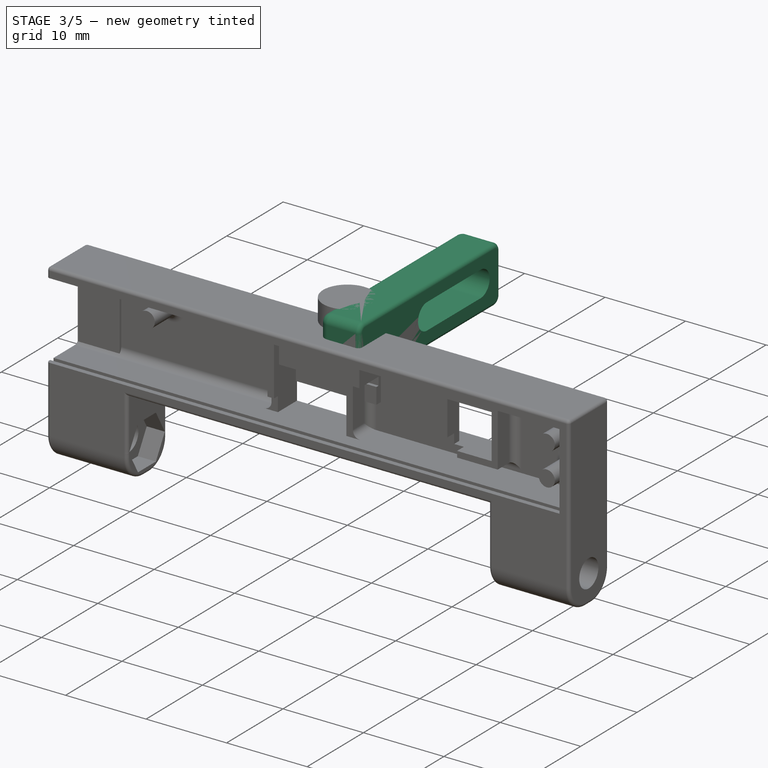
[diagram: stage 3 of 5 — iso view after this stage's code; geometry added in this stage tinted green]
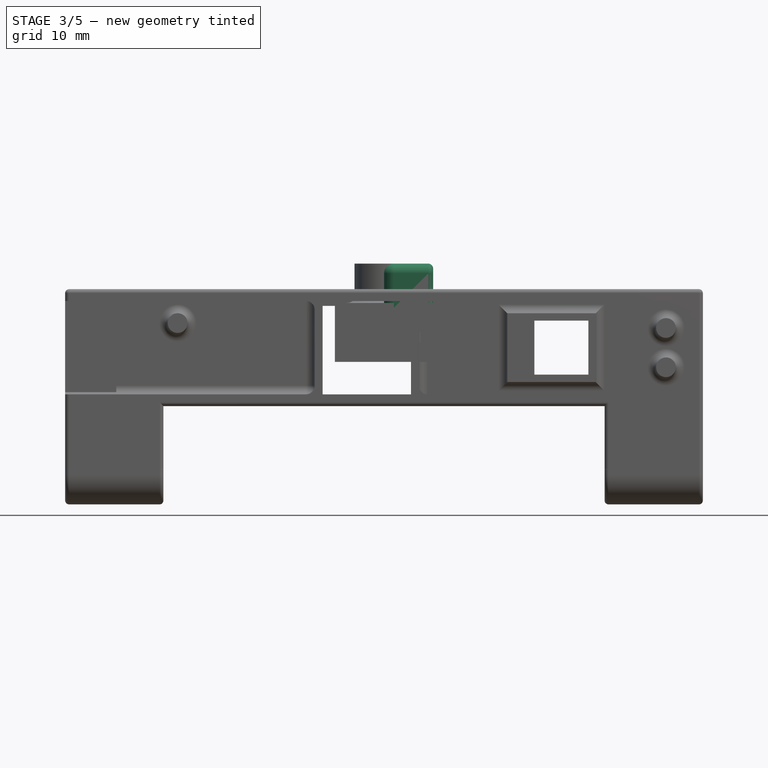
[diagram: stage 3 of 5 — front view after this stage's code; geometry added in this stage tinted green]
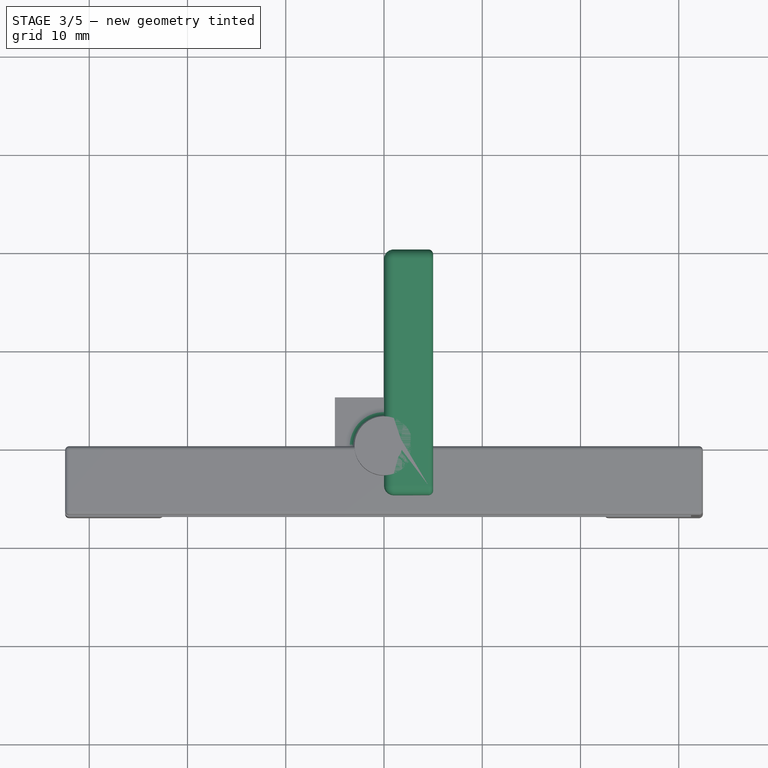
[diagram: stage 3 of 5 — top view after this stage's code; geometry added in this stage tinted green]
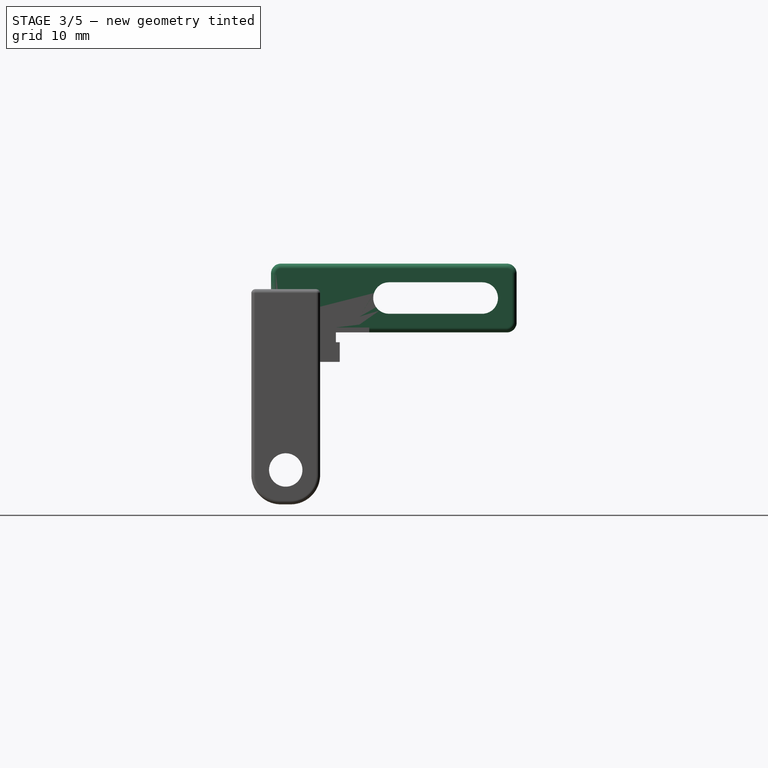
[diagram: stage 3 of 5 — right view after this stage's code; geometry added in this stage tinted green]
FEATURE [Sketcher::SketchObject] Sketch034
  FullyConstrained = false
  MapMode = 5
  Placement = pos=(5,-3e-15,2e-15) rot=(0.57735,0.57735,0.57735;2.0944rad)
  sketch-geometry (8):
    g0: LineSegment StartX=0.5 StartY=8.3 StartZ=0 EndX=0.4 EndY=4.3 EndZ=0
    g1: LineSegment StartX=0.4 StartY=4.3 StartZ=0 EndX=-0.4 EndY=4.3 EndZ=0
    g2: LineSegment StartX=-0.4 StartY=4.3 StartZ=0 EndX=-0.5 EndY=8.3 EndZ=0
    g3: LineSegment StartX=-0.5 StartY=8.3 StartZ=0 EndX=-4 EndY=8.3 EndZ=0
    g4: LineSegment StartX=-4 StartY=8.3 StartZ=0 EndX=-4 EndY=9.1 EndZ=0
    g5: LineSegment StartX=-4 StartY=9.1 StartZ=0 EndX=4 EndY=9.1 EndZ=0
    g6: LineSegment StartX=4 StartY=9.1 StartZ=0 EndX=4 EndY=8.3 EndZ=0
    g7: LineSegment StartX=4 StartY=8.3 StartZ=0 EndX=0.5 EndY=8.3 EndZ=0
  constraints (22):
    c: DistanceY(g-1,g0) = 8.3
    c: Coincident(g2,g3)
    c: Horizontal(g3)
    c: Coincident(g3,g4)
    c: Vertical(g4)
    c: Coincident(g4,g5)
    c: Horizontal(g5)
    c: Coincident(g5,g6)
    c: Vertical(g6)
    c: Coincident(g6,g7)
    c: Coincident(g7,g0)
    c: Horizontal(g7)
    c: Equal(g3,g7)
    c: DistanceY(g4,g4) = 0.8
    c: DistanceX(g5,g5) = 8
    c: Equal(g2,g0)
    c: DistanceX(g1,g1) = 0.8
    c: Symmetric(g1,g0,g-2)
    c: Symmetric(g2,g0,g-2)
    c: DistanceX(g2,g0) = 1
    c: DistanceY(g1,g2) = 4
    c: Horizontal(g1)
FEATURE [Sketcher::SketchObject] Sketch035
  FullyConstrained = true
  MapMode = 5
  Placement = pos=(0,0,0) rot=(0.57735,0.57735,0.57735;2.0944rad)
  Support = -> [YZ_Plane005]
  sketch-geometry (12):
    g0: LineSegment StartX=-5 StartY=7.5 StartZ=0 EndX=-5 EndY=10.5 EndZ=0
    g1: LineSegment StartX=-5 StartY=10.5 StartZ=0 EndX=5 EndY=10.5 EndZ=0
    g2: LineSegment StartX=5 StartY=10.5 StartZ=0 EndX=5 EndY=7.5 EndZ=0
    g3: LineSegment StartX=5 StartY=7.5 StartZ=0 EndX=1.6 EndY=7.5 EndZ=0
    g4: LineSegment StartX=-1.6 StartY=7.5 StartZ=0 EndX=-5 EndY=7.5 EndZ=0
    g5: LineSegment StartX=-1.6 StartY=7.5 StartZ=0 EndX=-1.6 EndY=6.5 EndZ=0
    g6: LineSegment StartX=-1.6 StartY=6.5 StartZ=0 EndX=-2 EndY=6.5 EndZ=0
    g7: LineSegment StartX=-2 StartY=6.5 StartZ=0 EndX=-2 EndY=4.5 EndZ=0
    g8: LineSegment StartX=-2 StartY=4.5 StartZ=0 EndX=2 EndY=4.5 EndZ=0
    g9: LineSegment StartX=2 StartY=4.5 StartZ=0 EndX=2 EndY=6.5 EndZ=0
    g10: LineSegment StartX=2 StartY=6.5 StartZ=0 EndX=1.6 EndY=6.5 EndZ=0
    g11: LineSegment StartX=1.6 StartY=6.5 StartZ=0 EndX=1.6 EndY=7.5 EndZ=0
  constraints (35):
    c: Coincident(g0,g1)
    c: Horizontal(g1)
    c: Coincident(g1,g2)
    c: Vertical(g2)
    c: Coincident(g2,g3)
    c: Horizontal(g3)
    c: Coincident(g4,g0)
    c: Horizontal(g4)
    c: Equal(g4,g3)
    c: Equal(g0,g2)
    c: DistanceY(g0,g0) = 3
    c: DistanceX(g1,g1) = 10
    c: DistanceX(g4,g3) = 3.2
    c: Vertical(g0)
    c: DistanceY(g-1,g2) = 7.5
    c: Coincident(g4,g5)
    c: Vertical(g5)
    c: Coincident(g5,g6)
    c: Horizontal(g6)
    c: Coincident(g6,g7)
    c: Vertical(g7)
    c: Coincident(g7,g8)
    c: Coincident(g8,g9)
    c: Vertical(g9)
    c: Coincident(g9,g10)
    c: Horizontal(g10)
    c: Coincident(g10,g11)
    c: Coincident(g11,g3)
    c: Vertical(g11)
    c: Equal(g6,g10)
    c: Equal(g5,g11)
    c: DistanceX(g6,g6) = 0.4
    c: Symmetric(g7,g8,g-2)
    c: DistanceY(g11,g11) = 1
    c: DistanceY(g7,g7) = 2
FEATURE [PartDesign::Pad] Pad020  label="body002"
  Direction = (1,1,1)
  Length = 10
  Length2 = 100
  Midplane = true
  Placement = pos=(0,0,0) rot=(0.57735,0.57735,0.57735;2.0944rad)
  Profile = -> Sketch035
  Type = 0
FEATURE [Sketcher::SketchObject] Sketch036
  FullyConstrained = false
  MapMode = 5
  Placement = pos=(5,-3e-15,2e-15) rot=(0.57735,0.57735,0.57735;2.0944rad)
  sketch-geometry (8):
    g0: LineSegment StartX=0.5 StartY=8.3 StartZ=0 EndX=0.4 EndY=4.3 EndZ=0
    g1: LineSegment StartX=0.4 StartY=4.3 StartZ=0 EndX=-0.4 EndY=4.3 EndZ=0
    g2: LineSegment StartX=-0.4 StartY=4.3 StartZ=0 EndX=-0.5 EndY=8.3 EndZ=0
    g3: LineSegment StartX=-0.5 StartY=8.3 StartZ=0 EndX=-4 EndY=8.3 EndZ=0
    g4: LineSegment StartX=-4 StartY=8.3 StartZ=0 EndX=-4 EndY=9.1 EndZ=0
    g5: LineSegment StartX=-4 StartY=9.1 StartZ=0 EndX=4 EndY=9.1 EndZ=0
    g6: LineSegment StartX=4 StartY=9.1 StartZ=0 EndX=4 EndY=8.3 EndZ=0
    g7: LineSegment StartX=4 StartY=8.3 StartZ=0 EndX=0.5 EndY=8.3 EndZ=0
  constraints (22):
    c: DistanceY(g-1,g0) = 8.3
    c: Coincident(g2,g3)
    c: Horizontal(g3)
    c: Coincident(g3,g4)
    c: Vertical(g4)
    c: Coincident(g4,g5)
    c: Horizontal(g5)
    c: Coincident(g5,g6)
    c: Vertical(g6)
    c: Coincident(g6,g7)
    c: Coincident(g7,g0)
    c: Horizontal(g7)
    c: Equal(g3,g7)
    c: DistanceY(g4,g4) = 0.8
    c: DistanceX(g5,g5) = 8
    c: Equal(g2,g0)
    c: DistanceX(g1,g1) = 0.8
    c: Symmetric(g1,g0,g-2)
    c: Symmetric(g2,g0,g-2)
    c: DistanceX(g2,g0) = 1
    c: DistanceY(g1,g2) = 4
    c: Horizontal(g1)
FEATURE [Sketcher::SketchObject] Sketch037
  FullyConstrained = true
  MapMode = 5
  Placement = pos=(-7.6e-15,7e-15,10.5) rot=(0,0,-1;1.5708rad)
  sketch-geometry (1):
    g0: Circle CenterX=0 CenterY=0 CenterZ=0 NormalX=0 NormalY=0 NormalZ=1 AngleXU=0 Radius=3
  constraints (2):
    c: Coincident(g0,g-1)
    c: Radius(g0) = 3
FEATURE [PartDesign::Pad] Pad021  label="drilling_cylinder"
  BaseFeature = -> Pad020
  Direction = (1,1,1)
  Length = 4
  Length2 = 100
  Placement = pos=(0,0,0) rot=(0.57735,0.57735,0.57735;2.0944rad)
  Profile = -> Sketch037
  Refine = true
  Type = 0
FEATURE [PartDesign::Fillet] Fillet018  label="drilling_enforcement001"
  Base = -> Pad023 [Edge11]
  BaseFeature = -> Pad023
  Placement = pos=(0,0,0) rot=(0.57735,0.57735,0.57735;2.0944rad)
  Radius = 1
  Refine = true
  SupportTransform = false
FEATURE [PartDesign::Pad] Pad024  label="rail001"
  BaseFeature = -> Fillet018
  Direction = (1,1,1)
  Length = 25
  Length2 = 100
  Placement = pos=(0,0,0) rot=(0.57735,0.57735,0.57735;2.0944rad)
  Profile = -> Sketch041
  Refine = true
  Reversed = true
  Type = 0
FEATURE [Sketcher::SketchObject] Sketch043
  FullyConstrained = true
  MapMode = 5
  Placement = pos=(-5.5e-15,8.2e-15,14.5) rot=(0,0,-1;1.5708rad)
  Support = -> [Pad024]
  sketch-geometry (1):
    g0: Circle CenterX=0 CenterY=0 CenterZ=0 NormalX=0 NormalY=0 NormalZ=1 AngleXU=0 Radius=1
  constraints (2):
    c: Coincident(g0,g-1)
    c: Radius(g0) = 1
FEATURE [PartDesign::Hole] Hole007  label="drilling"
  BaseFeature = -> Pad024
  Depth = 25
  DepthType = 1
  Diameter = 1.6
  DrillForDepth = false
  DrillPoint = 1
  DrillPointAngle = 118
  HoleCutCountersinkAngle = 90
  HoleCutCustomValues = false
  HoleCutDepth = 1
  HoleCutDiameter = 3.7
  HoleCutType = 1
  ModelActualThread = false
  Placement = pos=(0,0,0) rot=(0.57735,0.57735,0.57735;2.0944rad)
  Profile = -> Sketch043
  Refine = true
  Tapered = false
  TaperedAngle = 90
  ThreadAngle = 0
  ThreadClass = 0
  ThreadCutOffInner = 0
  ThreadCutOffOuter = 0
  ThreadDirection = 0
  ThreadFit = 0
  ThreadPitch = 0
  ThreadSize = 3
  ThreadType = 1
  Threaded = false
FEATURE [PartDesign::Plane] DatumPlane007
  Length = 60
  MapMode = 5
  Placement = pos=(-2.1e-15,0,0) rot=(0.57735,0.57735,-0.57735;4.18879rad)
  ResizeMode = 0
  Support = -> [Hole007]
  Width = 60
FEATURE [Sketcher::SketchObject] Sketch044
  FullyConstrained = true
  MapMode = 5
  Placement = pos=(-2.1e-15,0,0) rot=(0.57735,0.57735,-0.57735;4.18879rad)
  Support = -> [DatumPlane007]
  sketch-geometry (4):
    g0: ArcOfCircle CenterX=7 CenterY=-11 CenterZ=0 NormalX=0 NormalY=0 NormalZ=1 AngleXU=0 Radius=1.6 StartAngle=1.5708 EndAngle=4.71239
    g1: ArcOfCircle CenterX=16.5 CenterY=-11 CenterZ=0 NormalX=0 NormalY=0 NormalZ=1 AngleXU=0 Radius=1.6 StartAngle=4.71239 EndAngle=7.85398
    g2: LineSegment StartX=7 StartY=-9.4 StartZ=0 EndX=16.5 EndY=-9.4 EndZ=0
    g3: LineSegment StartX=7 StartY=-12.6 StartZ=0 EndX=16.5 EndY=-12.6 EndZ=0
  constraints (14):
    c: DistanceY(g1,g1) = 1.6
    c: Vertical(g1,g1)
    c: Vertical(g1,g1)
    c: Vertical(g0,g0)
    c: Vertical(g0,g0)
    c: Horizontal(g0,g1)
    c: Coincident(g2,g0)
    c: Coincident(g2,g1)
    c: Coincident(g3,g0)
    c: Coincident(g3,g1)
    c: Parallel(g2,g3)
    c: DistanceX(g0,g1) = 9.5
    c: DistanceY(g0,g-1) = 9.4
    c: DistanceX(g-1,g0) = 7
FEATURE [PartDesign::Pocket] Pocket018  label="rail_hole001"
  BaseFeature = -> Hole007
  Length = 5
  Length2 = 100
  Placement = pos=(0,0,0) rot=(0.57735,0.57735,0.57735;2.0944rad)
  Profile = -> Sketch044
  Refine = true
  Type = 1
FEATURE [PartDesign::Pocket] Pocket019  label="tongue_gap"
  BaseFeature = -> Pocket018
  Length = 5
  Length2 = 100
  Placement = pos=(0,0,0) rot=(0.57735,0.57735,0.57735;2.0944rad)
  Profile = -> Sketch034
  Refine = true
  Type = 1
FEATURE [PartDesign::Fillet] Fillet019
  Base = -> Pocket019 [Edge7,Edge14,Edge36,Edge10,Edge38,Edge39,Edge47,Edge100]
  BaseFeature = -> Pocket019
  Placement = pos=(0,0,0) rot=(0.57735,0.57735,0.57735;2.0944rad)
  Radius = 1
  Refine = true
  SupportTransform = false
FEATURE [PartDesign::Fillet] Fillet020
  Base = -> Fillet019 [Edge7,Edge5,Edge3,Edge17,Edge16,Edge31,Edge47,Edge29,Edge6,Edge30,Edge28,Edge64,Edge66,Edge68,Edge59,Edge14,Edge58,Edge60,Edge62]
  BaseFeature = -> Fillet019
  Placement = pos=(0,0,0) rot=(0.57735,0.57735,0.57735;2.0944rad)
  Radius = 0.5
  Refine = true
  SupportTransform = false
FEATURE [PartDesign::Fillet] Fillet021  label="tongue_rounding001"
  Base = -> Fillet020 [Edge142,Edge160]
  BaseFeature = -> Fillet020
  Placement = pos=(0,0,0) rot=(0.57735,0.57735,0.57735;2.0944rad)
  Radius = 1
  Refine = true
  SupportTransform = false
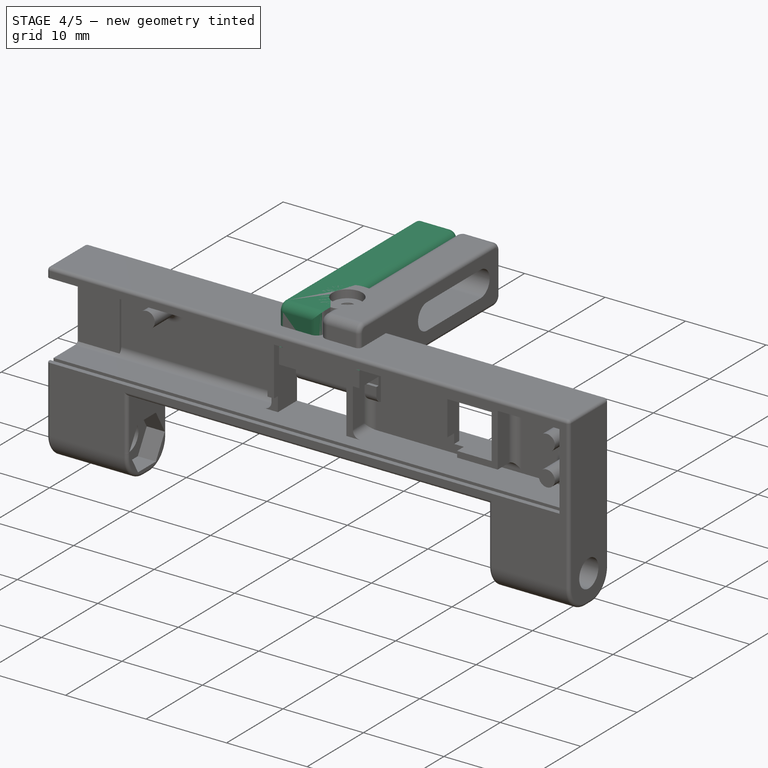
[diagram: stage 4 of 5 — iso view after this stage's code; geometry added in this stage tinted green]
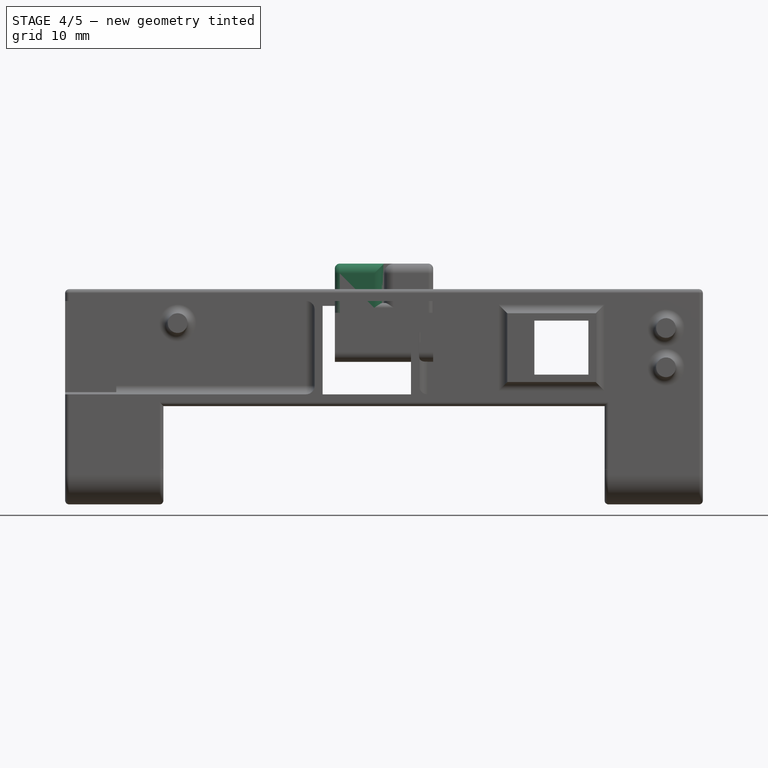
[diagram: stage 4 of 5 — front view after this stage's code; geometry added in this stage tinted green]
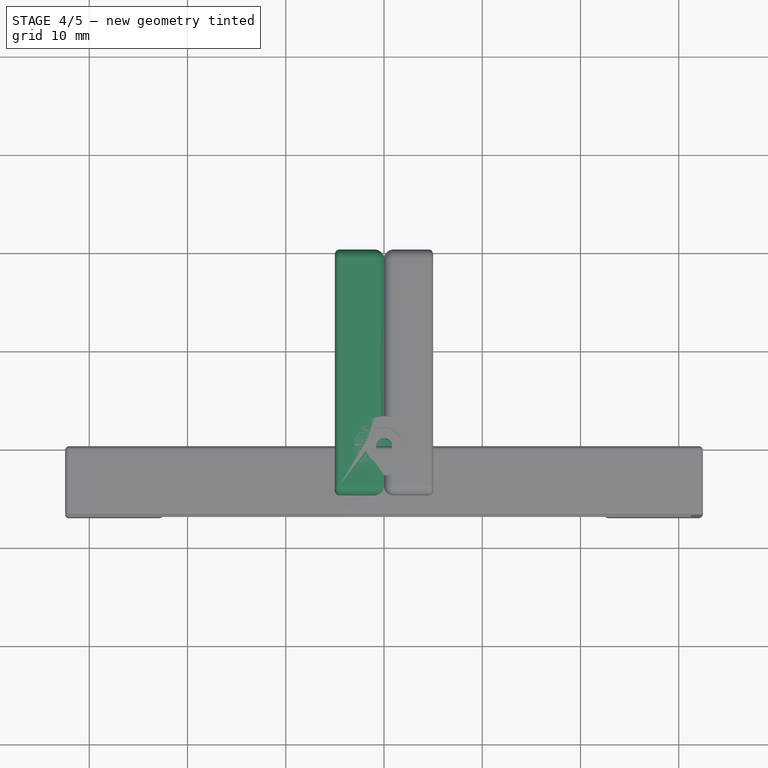
[diagram: stage 4 of 5 — top view after this stage's code; geometry added in this stage tinted green]
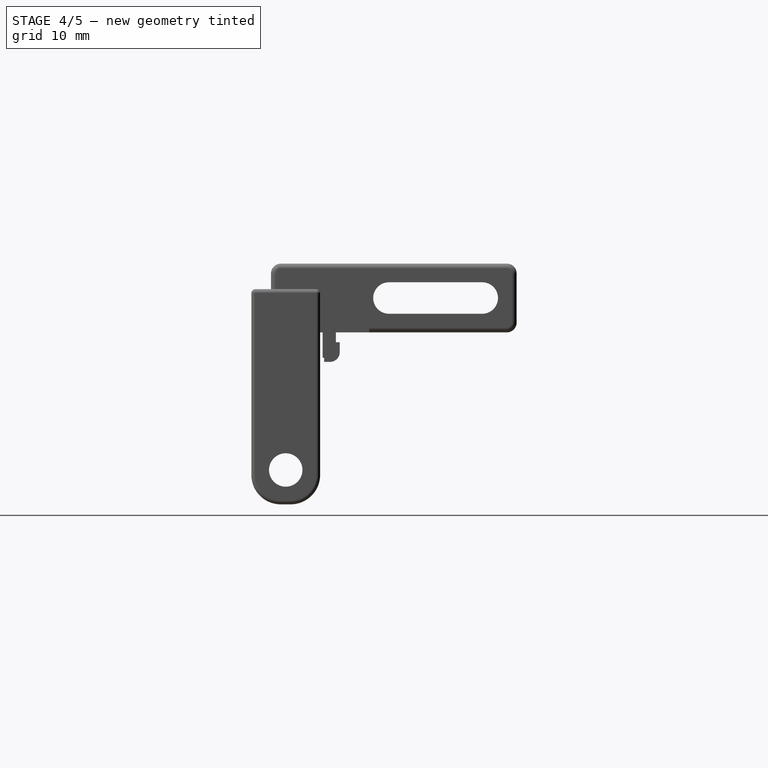
[diagram: stage 4 of 5 — right view after this stage's code; geometry added in this stage tinted green]
FEATURE [Part::Feature] Solid  label="profile"
  Placement = pos=(45,0,0) rot=(0,1,0;1.5708rad)
  shape: bbox 100 x 15 x 15 mm, 194 faces (baked)
FEATURE [Sketcher::SketchObject] Sketch002
  FullyConstrained = true
  MapMode = 5
  Placement = pos=(5,-3e-15,2e-15) rot=(0.57735,0.57735,0.57735;2.0944rad)
  sketch-geometry (4):
    g0: LineSegment StartX=-0.25 StartY=7.5 StartZ=0 EndX=0.25 EndY=7.5 EndZ=0
    g1: LineSegment StartX=0.25 StartY=7.5 StartZ=0 EndX=0.25 EndY=4.7 EndZ=0
    g2: LineSegment StartX=0.25 StartY=4.7 StartZ=0 EndX=-0.25 EndY=4.7 EndZ=0
    g3: LineSegment StartX=-0.25 StartY=4.7 StartZ=0 EndX=-0.25 EndY=7.5 EndZ=0
  constraints (12):
    c: Coincident(g0,g1)
    c: Coincident(g1,g2)
    c: Coincident(g2,g3)
    c: Coincident(g3,g0)
    c: Horizontal(g0)
    c: Horizontal(g2)
    c: Vertical(g1)
    c: Vertical(g3)
    c: DistanceX(g2,g2) = 0.5
    c: DistanceY(g-1,g0) = 7.5
    c: DistanceY(g3,g3) = 2.8
    c: DistanceX(g2,g-1) = 0.25
FEATURE [Sketcher::SketchObject] Sketch
  FullyConstrained = true
  MapMode = 5
  Placement = pos=(0,0,0) rot=(0.57735,0.57735,0.57735;2.0944rad)
  Support = -> [YZ_Plane001]
  sketch-geometry (13):
    g0: LineSegment StartX=-5 StartY=7.5 StartZ=0 EndX=-5 EndY=9.5 EndZ=0
    g1: LineSegment StartX=-5 StartY=9.5 StartZ=0 EndX=5 EndY=9.5 EndZ=0
    g2: LineSegment StartX=5 StartY=9.5 StartZ=0 EndX=5 EndY=7.5 EndZ=0
    g3: LineSegment StartX=5 StartY=7.5 StartZ=0 EndX=1.55 EndY=7.5 EndZ=0
    g4: LineSegment StartX=1.55 StartY=7.5 StartZ=0 EndX=1.05 EndY=6.4 EndZ=0
    g5: LineSegment StartX=1.05 StartY=6.4 StartZ=0 EndX=1.55 EndY=6.17273 EndZ=0
    g6: LineSegment StartX=1.55 StartY=6.17273 StartZ=0 EndX=0.868182 EndY=4.67273 EndZ=0
    g7: LineSegment StartX=0.868182 StartY=4.67273 StartZ=0 EndX=0 EndY=5.06736 EndZ=0
    g8: LineSegment StartX=0 StartY=5.06736 StartZ=0 EndX=-0.868182 EndY=4.67273 EndZ=0
    g9: LineSegment StartX=-0.868182 StartY=4.67273 StartZ=0 EndX=-1.55 EndY=6.17273 EndZ=0
    g10: LineSegment StartX=-1.55 StartY=6.17273 StartZ=0 EndX=-1.05 EndY=6.4 EndZ=0
    g11: LineSegment StartX=-1.05 StartY=6.4 StartZ=0 EndX=-1.55 EndY=7.5 EndZ=0
    g12: LineSegment StartX=-1.55 StartY=7.5 StartZ=0 EndX=-5 EndY=7.5 EndZ=0
  constraints (39):
    c: Coincident(g0,g1)
    c: Horizontal(g1)
    c: Coincident(g1,g2)
    c: Vertical(g2)
    c: Coincident(g2,g3)
    c: Horizontal(g3)
    c: Coincident(g3,g4)
    c: Coincident(g4,g5)
    c: Coincident(g5,g6)
    c: Coincident(g6,g7)
    c: Coincident(g7,g8)
    c: Coincident(g8,g9)
    c: Coincident(g9,g10)
    c: Coincident(g10,g11)
    c: Coincident(g11,g12)
    c: Coincident(g12,g0)
    c: Horizontal(g12)
    c: Equal(g12,g3)
    c: Equal(g0,g2)
    c: Equal(g11,g4)
    c: Equal(g10,g5)
    c: Equal(g8,g7)
    c: Equal(g9,g6)
    c: Vertical(g9,g11)
    c: Vertical(g5,g3)
    c: Angle(g11,g10) = 1.5708
    c: Angle(g9,g10) = 1.5708
    c: Angle(g5,g4) = 1.5708
    c: Angle(g5,g6) = 1.5708
    c: Angle(g8,g9) = 1.5708
    c: DistanceY(g0,g0) = 2
    c: DistanceX(g1,g1) = 10
    c: DistanceX(g10,g10) = 0.5
    c: DistanceY(g11,g11) = 1.1
    c: DistanceY(g9,g9) = 1.5
    c: DistanceX(g11,g3) = 3.1
    c: Vertical(g0)
    c: Vertical(g7,g-1)
    c: DistanceY(g-1,g2) = 7.5
FEATURE [PartDesign::Pad] Pad
  Direction = (1,1,1)
  Length = 10
  Length2 = 100
  Midplane = true
  Placement = pos=(0,0,0) rot=(0.57735,0.57735,0.57735;2.0944rad)
  Profile = -> Sketch
  Type = 0
FEATURE [PartDesign::Pocket] Pocket
  BaseFeature = -> Pad
  Length = 5
  Length2 = 100
  Placement = pos=(0,0,0) rot=(0.57735,0.57735,0.57735;2.0944rad)
  Profile = -> Sketch002
  Type = 1
FEATURE [PartDesign::Fillet] Fillet013  label="drilling_enforcement"
  Base = -> Pad021 [Edge11]
  BaseFeature = -> Pad021
  Placement = pos=(0,0,0) rot=(0.57735,0.57735,0.57735;2.0944rad)
  Radius = 1
  Refine = true
  SupportTransform = false
FEATURE [PartDesign::Plane] DatumPlane003
  Length = 60
  MapMode = 5
  Placement = pos=(-2.2e-15,-5,3.3e-15) rot=(0.57735,0.57735,-0.57735;2.0944rad)
  ResizeMode = 0
  Support = -> [Fillet013]
  Width = 60
FEATURE [Sketcher::SketchObject] Sketch038
  FullyConstrained = true
  MapMode = 5
  Placement = pos=(-2.2e-15,-5,3.3e-15) rot=(-0.57735,-0.57735,0.57735;4.18879rad)
  Support = -> [DatumPlane003]
  sketch-geometry (4):
    g0: LineSegment StartX=-14.5 StartY=0 StartZ=0 EndX=-7.5 EndY=0 EndZ=0
    g1: LineSegment StartX=-7.5 StartY=0 StartZ=0 EndX=-7.5 EndY=-5 EndZ=0
    g2: LineSegment StartX=-7.5 StartY=-5 StartZ=0 EndX=-14.5 EndY=-5 EndZ=0
    g3: LineSegment StartX=-14.5 StartY=-5 StartZ=0 EndX=-14.5 EndY=0 EndZ=0
  constraints (12):
    c: Coincident(g0,g1)
    c: Coincident(g1,g2)
    c: Coincident(g2,g3)
    c: Coincident(g3,g0)
    c: Horizontal(g0)
    c: Horizontal(g2)
    c: Vertical(g3)
    c: DistanceX(g0,g0) = 7
    c: DistanceY(g3,g3) = 5
    c: DistanceX(g0,g-1) = 7.5
    c: Vertical(g1)
    c: PointOnObject(g0,g-1)
FEATURE [PartDesign::Pad] Pad022  label="rail"
  BaseFeature = -> Fillet013
  Direction = (1,1,1)
  Length = 25
  Length2 = 100
  Placement = pos=(0,0,0) rot=(0.57735,0.57735,0.57735;2.0944rad)
  Profile = -> Sketch038
  Refine = true
  Reversed = true
  Type = 0
FEATURE [Sketcher::SketchObject] Sketch039
  FullyConstrained = true
  MapMode = 5
  Placement = pos=(-9e-16,1.44e-14,14.5) rot=(0,0,-1;1.5708rad)
  sketch-geometry (1):
    g0: Circle CenterX=0 CenterY=0 CenterZ=0 NormalX=0 NormalY=0 NormalZ=1 AngleXU=0 Radius=1
  constraints (2):
    c: Coincident(g0,g-1)
    c: Radius(g0) = 1
FEATURE [PartDesign::Hole] Hole006  label="drilling001"
  BaseFeature = -> Pad022
  Depth = 8
  DepthType = 1
  Diameter = 1.6
  DrillForDepth = false
  DrillPoint = 1
  DrillPointAngle = 118
  HoleCutCountersinkAngle = 90
  HoleCutCustomValues = false
  HoleCutDepth = 1
  HoleCutDiameter = 3.7
  HoleCutType = 1
  ModelActualThread = false
  Placement = pos=(0,0,0) rot=(0.57735,0.57735,0.57735;2.0944rad)
  Profile = -> Sketch039
  Refine = true
  Tapered = false
  TaperedAngle = 90
  ThreadAngle = 0
  ThreadClass = 0
  ThreadCutOffInner = 0
  ThreadCutOffOuter = 0
  ThreadDirection = 0
  ThreadFit = 0
  ThreadPitch = 0
  ThreadSize = 3
  ThreadType = 1
  Threaded = false
FEATURE [PartDesign::Plane] DatumPlane005
  Length = 60
  MapMode = 5
  Placement = pos=(1e-16,0,0) rot=(0.57735,0.57735,0.57735;2.0944rad)
  ResizeMode = 0
  Support = -> [Hole006]
  Width = 60
FEATURE [Sketcher::SketchObject] Sketch040
  FullyConstrained = true
  MapMode = 5
  Placement = pos=(1e-16,0,0) rot=(0.57735,0.57735,0.57735;2.0944rad)
  Support = -> [DatumPlane005]
  sketch-geometry (4):
    g0: ArcOfCircle CenterX=16.5 CenterY=11 CenterZ=0 NormalX=0 NormalY=0 NormalZ=1 AngleXU=0 Radius=1.6 StartAngle=4.71239 EndAngle=7.85398
    g1: ArcOfCircle CenterX=7 CenterY=11 CenterZ=0 NormalX=0 NormalY=0 NormalZ=1 AngleXU=0 Radius=1.6 StartAngle=1.5708 EndAngle=4.71239
    g2: LineSegment StartX=7 StartY=12.6 StartZ=0 EndX=16.5 EndY=12.6 EndZ=0
    g3: LineSegment StartX=7 StartY=9.4 StartZ=0 EndX=16.5 EndY=9.4 EndZ=0
  constraints (14):
    c: Vertical(g1,g1)
    c: Vertical(g1,g1)
    c: Vertical(g0,g0)
    c: Vertical(g0,g0)
    c: DistanceY(g0,g0) = 1.6
    c: Coincident(g2,g1)
    c: Coincident(g2,g0)
    c: Coincident(g3,g1)
    c: Coincident(g3,g0)
    c: Horizontal(g1,g0)
    c: Parallel(g3,g2)
    c: DistanceX(g1,g0) = 9.5
    c: DistanceX(g-1,g1) = 7
    c: DistanceY(g-1,g1) = 9.4
FEATURE [PartDesign::Pocket] Pocket016  label="rail_hole"
  BaseFeature = -> Hole006
  Length = 5
  Length2 = 100
  Placement = pos=(0,0,0) rot=(0.57735,0.57735,0.57735;2.0944rad)
  Profile = -> Sketch040
  Refine = true
  Type = 1
FEATURE [PartDesign::Pocket] Pocket017  label="tongue_gap001"
  BaseFeature = -> Pocket016
  Length = 5
  Length2 = 100
  Placement = pos=(0,0,0) rot=(0.57735,0.57735,0.57735;2.0944rad)
  Profile = -> Sketch036
  Refine = true
  Type = 1
FEATURE [PartDesign::Fillet] Fillet014
  Base = -> Pocket017 [Edge9,Edge1,Edge21,Edge20,Edge64,Edge72,Edge65]
  BaseFeature = -> Pocket017
  Placement = pos=(0,0,0) rot=(0.57735,0.57735,0.57735;2.0944rad)
  Radius = 1
  Refine = true
  SupportTransform = false
FEATURE [PartDesign::Fillet] Fillet015
  Base = -> Fillet014 [Edge32,Edge30,Edge20,Edge5,Edge28,Edge21,Edge23,Edge25,Edge95,Edge54,Edge59,Edge127,Edge70,Edge72,Edge71,Edge56,Edge55,Edge53,Edge58]
  BaseFeature = -> Fillet014
  Placement = pos=(0,0,0) rot=(0.57735,0.57735,0.57735;2.0944rad)
  Radius = 0.5
  Refine = true
  SupportTransform = false
FEATURE [PartDesign::Fillet] Fillet017
  Base = -> Fillet015 [Edge77,Edge76,Edge75,Edge78]
  BaseFeature = -> Fillet015
  Placement = pos=(0,0,0) rot=(0.57735,0.57735,0.57735;2.0944rad)
  Radius = 0.4
  Refine = true
  SupportTransform = false
FEATURE [PartDesign::Fillet] Fillet016  label="tongue_rounding"
  Base = -> Fillet017 [Edge175,Edge155]
  BaseFeature = -> Fillet017
  Placement = pos=(0,0,0) rot=(0.57735,0.57735,0.57735;2.0944rad)
  Radius = 1
  Refine = true
  SupportTransform = false
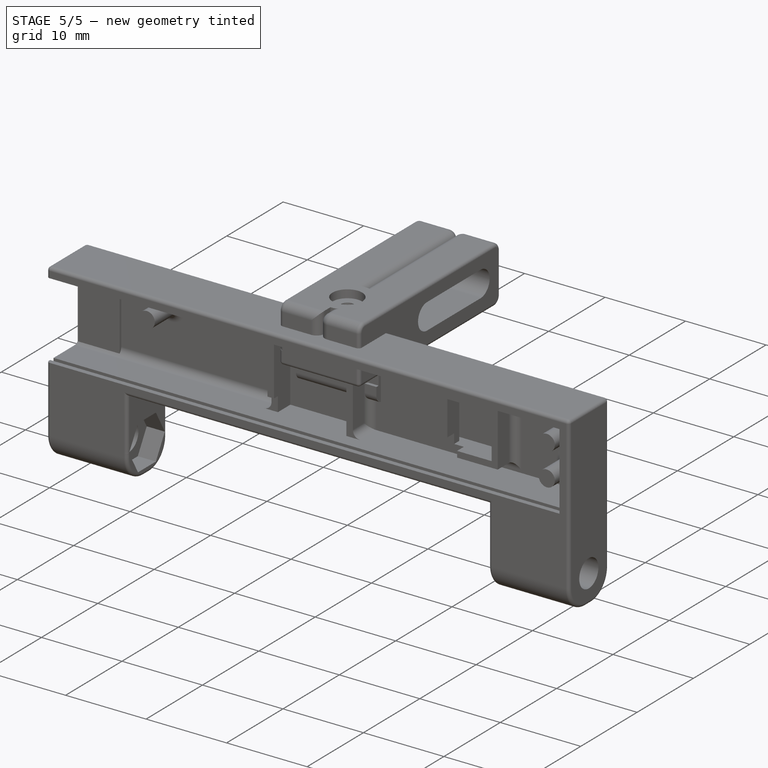
[diagram: stage 5 of 5 — iso view after this stage's code; geometry added in this stage tinted green]
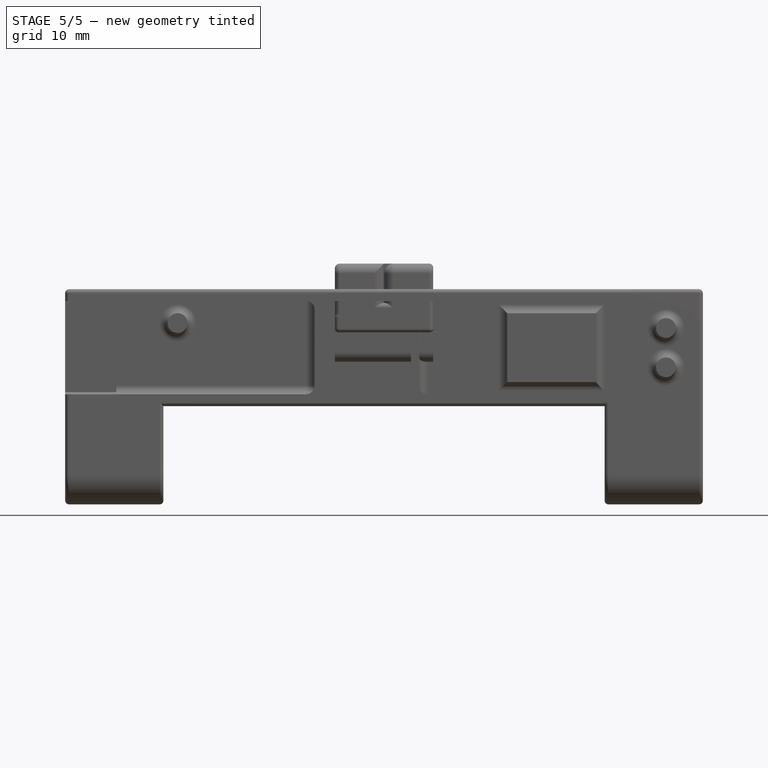
[diagram: stage 5 of 5 — front view after this stage's code; geometry added in this stage tinted green]
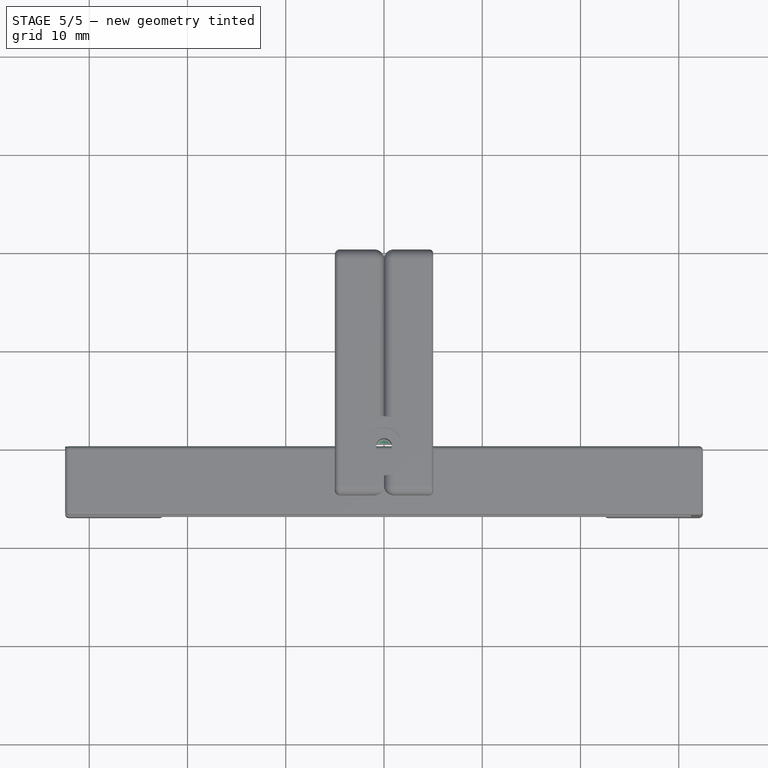
[diagram: stage 5 of 5 — top view after this stage's code; geometry added in this stage tinted green]
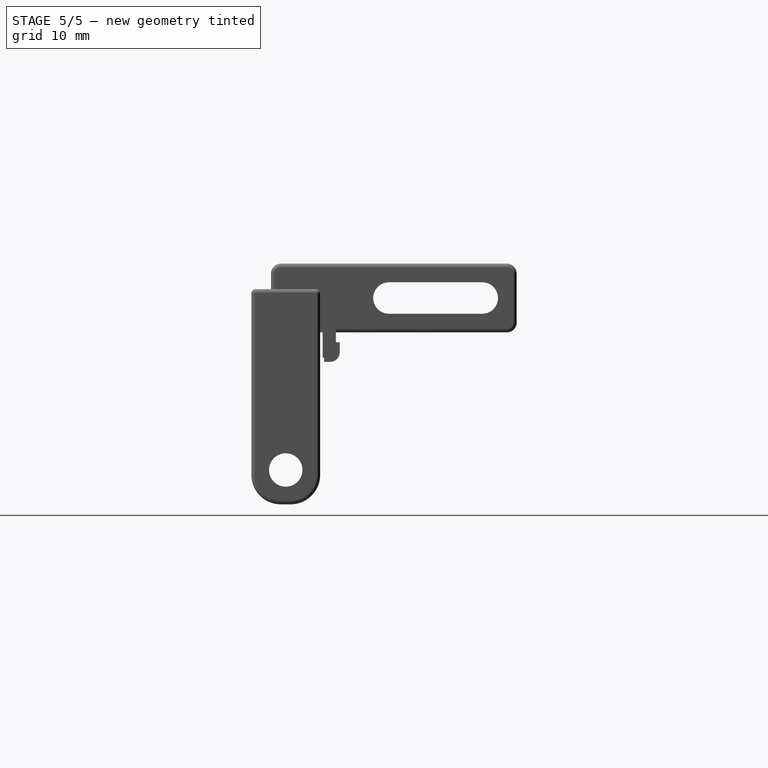
[diagram: stage 5 of 5 — right view after this stage's code; geometry added in this stage tinted green]
FEATURE [PartDesign::Fillet] Fillet
  Base = -> Pocket [Edge45,Edge40]
  BaseFeature = -> Pocket
  Placement = pos=(0,0,0) rot=(0.57735,0.57735,0.57735;2.0944rad)
  Radius = 0.5
  SupportTransform = false
FEATURE [Sketcher::SketchObject] Sketch019
  FullyConstrained = true
  MapMode = 5
  Placement = pos=(0,0,0) rot=(1,0,0;1.5708rad)
  Support = -> [XZ_Plane]
  expr: Constraints[9] = -44.9 / 2
  sketch-geometry (4):
    g0: LineSegment StartX=-22.45 StartY=0 StartZ=0 EndX=22.45 EndY=0 EndZ=0
    g1: LineSegment StartX=22.45 StartY=0 StartZ=0 EndX=22.45 EndY=-10 EndZ=0
    g2: LineSegment StartX=22.45 StartY=-10 StartZ=0 EndX=-22.45 EndY=-10 EndZ=0
    g3: LineSegment StartX=-22.45 StartY=-10 StartZ=0 EndX=-22.45 EndY=0 EndZ=0
  constraints (12):
    c: Coincident(g0,g1)
    c: Coincident(g1,g2)
    c: Coincident(g2,g3)
    c: Coincident(g3,g0)
    c: Horizontal(g0)
    c: Horizontal(g2)
    c: Vertical(g1)
    c: Vertical(g3)
    c: DistanceX(g2,g2) = 44.9
    c: DistanceX(g-1,g0) = -22.45
    c: DistanceY(g0,g-1) = 0
    c: DistanceY(g1,g1) = 10
FEATURE [Sketcher::SketchObject] Sketch022
  FullyConstrained = true
  MapMode = 5
  Placement = pos=(0,0,0) rot=(1,0,0;1.5708rad)
  Support = -> [XZ_Plane003]
  expr: Constraints[10] = -63.7 / 2 - 0.6
  sketch-geometry (4):
    g0: LineSegment StartX=-32.45 StartY=11.1 StartZ=0 EndX=31.25 EndY=11.1 EndZ=0
    g1: LineSegment StartX=31.25 StartY=11.1 StartZ=0 EndX=31.25 EndY=0.8 EndZ=0
    g2: LineSegment StartX=31.25 StartY=0.8 StartZ=0 EndX=-32.45 EndY=0.8 EndZ=0
    g3: LineSegment StartX=-32.45 StartY=0.8 StartZ=0 EndX=-32.45 EndY=11.1 EndZ=0
  constraints (12):
    c: Coincident(g0,g1)
    c: Coincident(g1,g2)
    c: Coincident(g2,g3)
    c: Coincident(g3,g0)
    c: Horizontal(g0)
    c: Horizontal(g2)
    c: Vertical(g1)
    c: Vertical(g3)
    c: DistanceX(g0,g0) = 63.7
    c: DistanceY(g1,g1) = 10.3
    c: DistanceX(g2) = -32.45
    c: DistanceY(g-1,g2) = 0.8
FEATURE [PartDesign::Pad] Pad014  label="body"
  Direction = (1,1,1)
  Length = 1.2
  Length2 = 100
  Placement = pos=(0,0,0) rot=(1,0,0;1.5708rad)
  Profile = -> Sketch022
  Refine = true
  Type = 0
FEATURE [PartDesign::Chamfer] Chamfer001  label="chamfer"
  Angle = 45
  Base = -> Pad014 [Edge3,Edge9]
  BaseFeature = -> Pad014
  ChamferType = 0
  FlipDirection = false
  Placement = pos=(0,0,0) rot=(1,0,0;1.5708rad)
  Refine = true
  Size = 1
  Size2 = 1
  SupportTransform = false
FEATURE [PartDesign::Body] Body003  label="lid"
  Group = -> [Sketch022,Pad014,Chamfer001]
  Origin = -> Origin003
  Placement = pos=(1.2,16.95,17.5) rot=(0,0,1;0rad)
  Tip = -> Chamfer001
FEATURE [Sketcher::SketchObject] Sketch024
  FullyConstrained = true
  MapMode = 5
  Placement = pos=(-2.7e-15,4.2e-15,9.5) rot=(0,0,-1;1.5708rad)
  Support = -> [Pad]
  sketch-geometry (1):
    g0: Circle CenterX=0 CenterY=0 CenterZ=0 NormalX=0 NormalY=0 NormalZ=1 AngleXU=0 Radius=3
  constraints (2):
    c: Radius(g0) = 3
    c: Coincident(g0,g-1)
FEATURE [PartDesign::Pad] Pad016
  BaseFeature = -> Fillet
  Direction = (1,1,1)
  Length = 5
  Length2 = 100
  Placement = pos=(0,0,0) rot=(0.57735,0.57735,0.57735;2.0944rad)
  Profile = -> Sketch024
  Refine = true
  Type = 0
FEATURE [PartDesign::Fillet] Fillet004
  Base = -> Pad016 [Edge42]
  BaseFeature = -> Pad016
  Placement = pos=(0,0,0) rot=(0.57735,0.57735,0.57735;2.0944rad)
  Radius = 1
  Refine = true
  SupportTransform = false
FEATURE [PartDesign::Plane] DatumPlane
  Length = 60
  MapMode = 5
  Placement = pos=(-2.8e-15,-5,1.1e-15) rot=(-0.57735,-0.57735,0.57735;4.18879rad)
  ResizeMode = 0
  Support = -> [Fillet004]
  Width = 60
FEATURE [Sketcher::SketchObject] Sketch025
  FullyConstrained = true
  MapMode = 5
  Placement = pos=(-2.8e-15,-5,1.1e-15) rot=(0.57735,0.57735,-0.57735;2.0944rad)
  Support = -> [DatumPlane]
  sketch-geometry (4):
    g0: LineSegment StartX=-7.5 StartY=0 StartZ=0 EndX=-14.5 EndY=0 EndZ=0
    g1: LineSegment StartX=-14.5 StartY=0 StartZ=0 EndX=-14.5 EndY=5 EndZ=0
    g2: LineSegment StartX=-14.5 StartY=5 StartZ=0 EndX=-7.5 EndY=5 EndZ=0
    g3: LineSegment StartX=-7.5 StartY=5 StartZ=0 EndX=-7.5 EndY=0 EndZ=0
  constraints (12):
    c: Coincident(g0,g1)
    c: Coincident(g1,g2)
    c: Coincident(g2,g3)
    c: Coincident(g3,g0)
    c: Horizontal(g0)
    c: Horizontal(g2)
    c: Vertical(g1)
    c: Vertical(g3)
    c: PointOnObject(g0,g-1)
    c: DistanceX(g0,g0) = 7
    c: DistanceY(g1,g1) = 5
    c: DistanceX(g0,g-1) = 7.5
FEATURE [PartDesign::Pad] Pad017
  BaseFeature = -> Fillet004
  Direction = (1,1,1)
  Length = 25
  Length2 = 100
  Placement = pos=(0,0,0) rot=(0.57735,0.57735,0.57735;2.0944rad)
  Profile = -> Sketch025
  Refine = true
  Reversed = true
  Type = 0
FEATURE [PartDesign::Plane] DatumPlane001
  Length = 60
  MapMode = 5
  Placement = pos=(-4.7e-15,2.3e-15,14.5) rot=(0,0,-1;1.5708rad)
  ResizeMode = 0
  Support = -> [Pad017]
  Width = 60
FEATURE [Sketcher::SketchObject] Sketch026
  FullyConstrained = true
  MapMode = 5
  Placement = pos=(-4.7e-15,2.3e-15,14.5) rot=(0,0,-1;1.5708rad)
  Support = -> [DatumPlane001]
  sketch-geometry (1):
    g0: Circle CenterX=0 CenterY=0 CenterZ=0 NormalX=0 NormalY=0 NormalZ=1 AngleXU=0 Radius=1
  constraints (2):
    c: Radius(g0) = 1
    c: Coincident(g0,g-1)
FEATURE [PartDesign::Hole] Hole004
  BaseFeature = -> Pad017
  Depth = 8
  DepthType = 0
  Diameter = 1.6
  DrillForDepth = false
  DrillPoint = 1
  DrillPointAngle = 118
  HoleCutCountersinkAngle = 90
  HoleCutCustomValues = false
  HoleCutDepth = 1
  HoleCutDiameter = 3.7
  HoleCutType = 1
  ModelActualThread = false
  Placement = pos=(0,0,0) rot=(0.57735,0.57735,0.57735;2.0944rad)
  Profile = -> Sketch026
  Refine = true
  Tapered = false
  TaperedAngle = 90
  ThreadAngle = 0
  ThreadClass = 0
  ThreadCutOffInner = 0
  ThreadCutOffOuter = 0
  ThreadDirection = 0
  ThreadFit = 0
  ThreadPitch = 0
  ThreadSize = 3
  ThreadType = 1
  Threaded = false
FEATURE [PartDesign::Fillet] Fillet005
  Base = -> Hole004 [Edge7,Edge8,Edge33,Edge34,Edge80,Edge35,Edge14,Edge41]
  BaseFeature = -> Hole004
  Placement = pos=(0,0,0) rot=(0.57735,0.57735,0.57735;2.0944rad)
  Radius = 1
  Refine = true
  SupportTransform = false
FEATURE [PartDesign::Fillet] Fillet006
  Base = -> Fillet005 [Edge6,Edge5,Edge4,Edge7,Edge26,Edge16,Edge70,Edge69,Edge68,Edge67,Edge66,Edge14,Edge71,Edge52,Edge25,Edge24,Edge31,Edge30,Edge17]
  BaseFeature = -> Fillet005
  Placement = pos=(0,0,0) rot=(0.57735,0.57735,0.57735;2.0944rad)
  Radius = 0.4
  Refine = true
  SupportTransform = false
FEATURE [PartDesign::Plane] DatumPlane002
  Length = 60
  MapMode = 5
  Placement = pos=(-5e-16,0,0) rot=(-0.57735,-0.57735,0.57735;2.0944rad)
  ResizeMode = 0
  Support = -> [Fillet006]
  Width = 60
FEATURE [Sketcher::SketchObject] Sketch027
  FullyConstrained = true
  MapMode = 5
  Placement = pos=(-5e-16,0,0) rot=(0.57735,0.57735,-0.57735;4.18879rad)
  Support = -> [DatumPlane002]
  expr: Constraints[12] = -(7 - 3.2) / 2 - 7.5
  sketch-geometry (4):
    g0: LineSegment StartX=7 StartY=-9.4 StartZ=0 EndX=16.5 EndY=-9.4 EndZ=0
    g1: LineSegment StartX=16.5 StartY=-12.6 StartZ=0 EndX=7 EndY=-12.6 EndZ=0
    g2: ArcOfCircle CenterX=16.5 CenterY=-11 CenterZ=0 NormalX=0 NormalY=0 NormalZ=1 AngleXU=0 Radius=1.6 StartAngle=4.71239 EndAngle=7.85398
    g3: ArcOfCircle CenterX=7 CenterY=-11 CenterZ=0 NormalX=0 NormalY=0 NormalZ=1 AngleXU=0 Radius=1.6 StartAngle=1.5708 EndAngle=4.71239
  constraints (14):
    c: Horizontal(g0)
    c: Horizontal(g1)
    c: Radius(g2) = 1.6
    c: Coincident(g3,g0)
    c: Coincident(g3,g1)
    c: Coincident(g2,g1)
    c: Coincident(g2,g0)
    c: DistanceX(g0,g0) = 9.5
    c: Vertical(g0,g3)
    c: Vertical(g3,g1)
    c: Vertical(g0,g2)
    c: Vertical(g2,g1)
    c: DistanceY(g0) = -9.4
    c: DistanceX(g-1,g0) = 7
FEATURE [PartDesign::Pocket] Pocket010
  BaseFeature = -> Fillet006
  Length = 5
  Length2 = 100
  Placement = pos=(0,0,0) rot=(0.57735,0.57735,0.57735;2.0944rad)
  Profile = -> Sketch027
  Refine = true
  Type = 1
FEATURE [Sketcher::SketchObject] Sketch028
  FullyConstrained = true
  MapMode = 5
  Placement = pos=(-5e-16,0,0) rot=(0.57735,0.57735,-0.57735;4.18879rad)
  Support = -> [DatumPlane002]
  expr: Constraints[8] = -7.5 - (7 - 4.5) / 2
  sketch-geometry (4):
    g0: ArcOfCircle CenterX=7 CenterY=-11 CenterZ=0 NormalX=0 NormalY=0 NormalZ=1 AngleXU=0 Radius=2.25 StartAngle=1.5708 EndAngle=4.71239
    g1: ArcOfCircle CenterX=16.5 CenterY=-11 CenterZ=0 NormalX=0 NormalY=0 NormalZ=1 AngleXU=0 Radius=2.25 StartAngle=4.71239 EndAngle=7.85398
    g2: LineSegment StartX=7 StartY=-13.25 StartZ=0 EndX=16.5 EndY=-13.25 EndZ=0
    g3: LineSegment StartX=7 StartY=-8.75 StartZ=0 EndX=16.5 EndY=-8.75 EndZ=0
  constraints (10):
    c: Tangent(g0,g3) = 1.5708
    c: Tangent(g0,g2) = -1.5708
    c: Tangent(g2,g1) = -1.5708
    c: Tangent(g3,g1) = 1.5708
    c: Horizontal(g2)
    c: Equal(g0,g1)
    c: DistanceY(g0,g0) = 4.5
    c: DistanceX(g0,g1) = 9.5
    c: DistanceY(g0) = -8.75
    c: DistanceX(g-1,g0) = 7
FEATURE [PartDesign::Fillet] Fillet009
  Base = -> Pocket010 [Edge24,Edge23,Edge22,Edge25]
  BaseFeature = -> Pocket010
  Placement = pos=(0,0,0) rot=(0.57735,0.57735,0.57735;2.0944rad)
  Radius = 0.5
  Refine = true
  SupportTransform = false
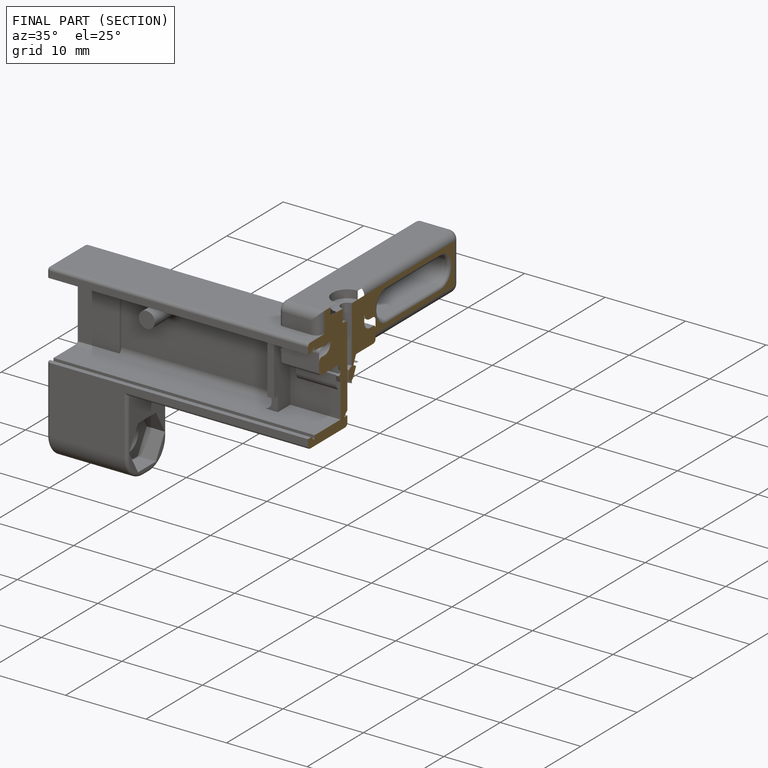
[diagram: finished part — half-section view (interior)]
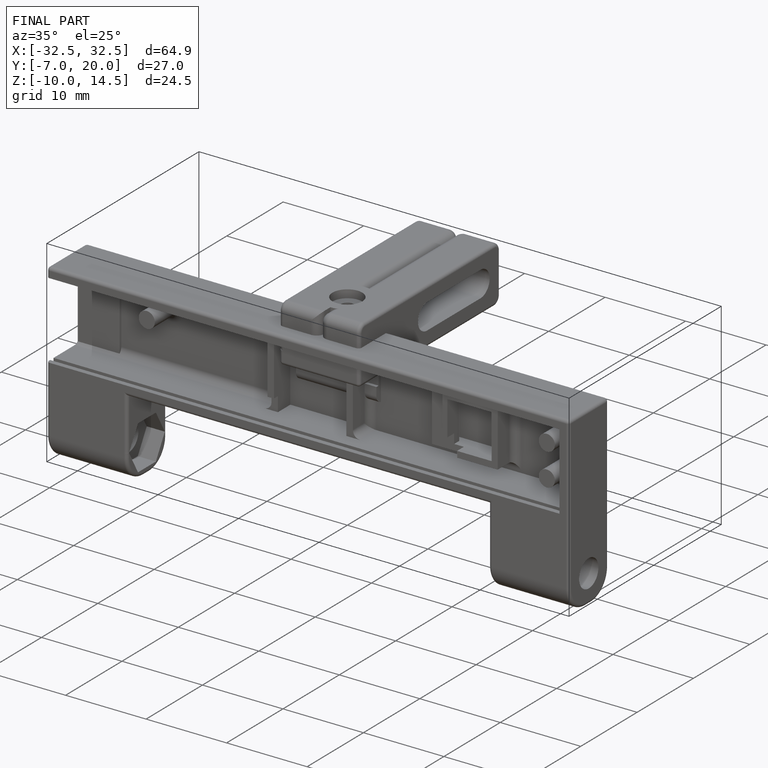
[diagram: finished part — iso view with bounding-box wireframe]
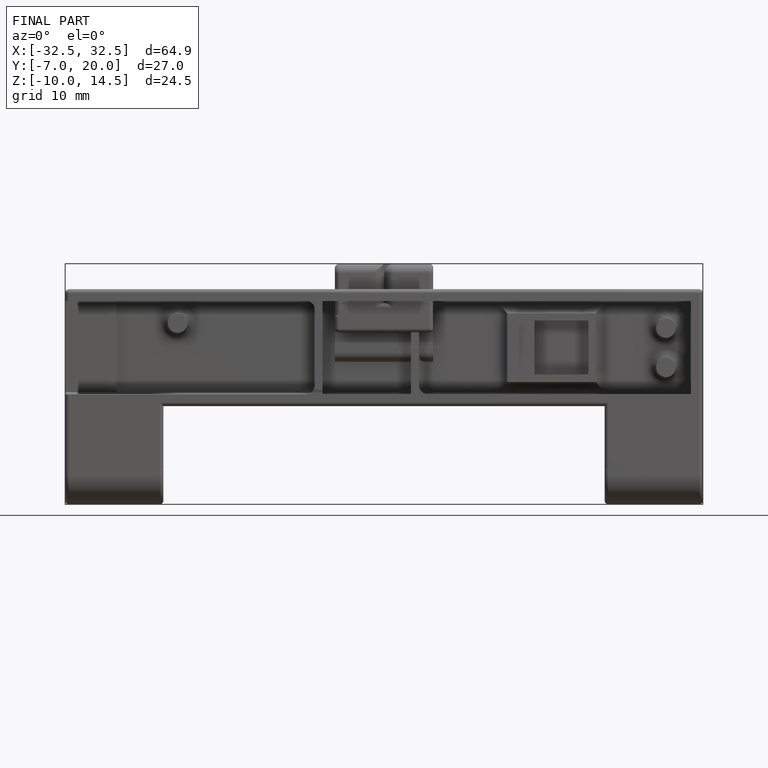
[diagram: finished part — front view with bounding-box wireframe]
